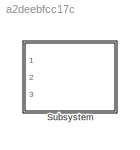
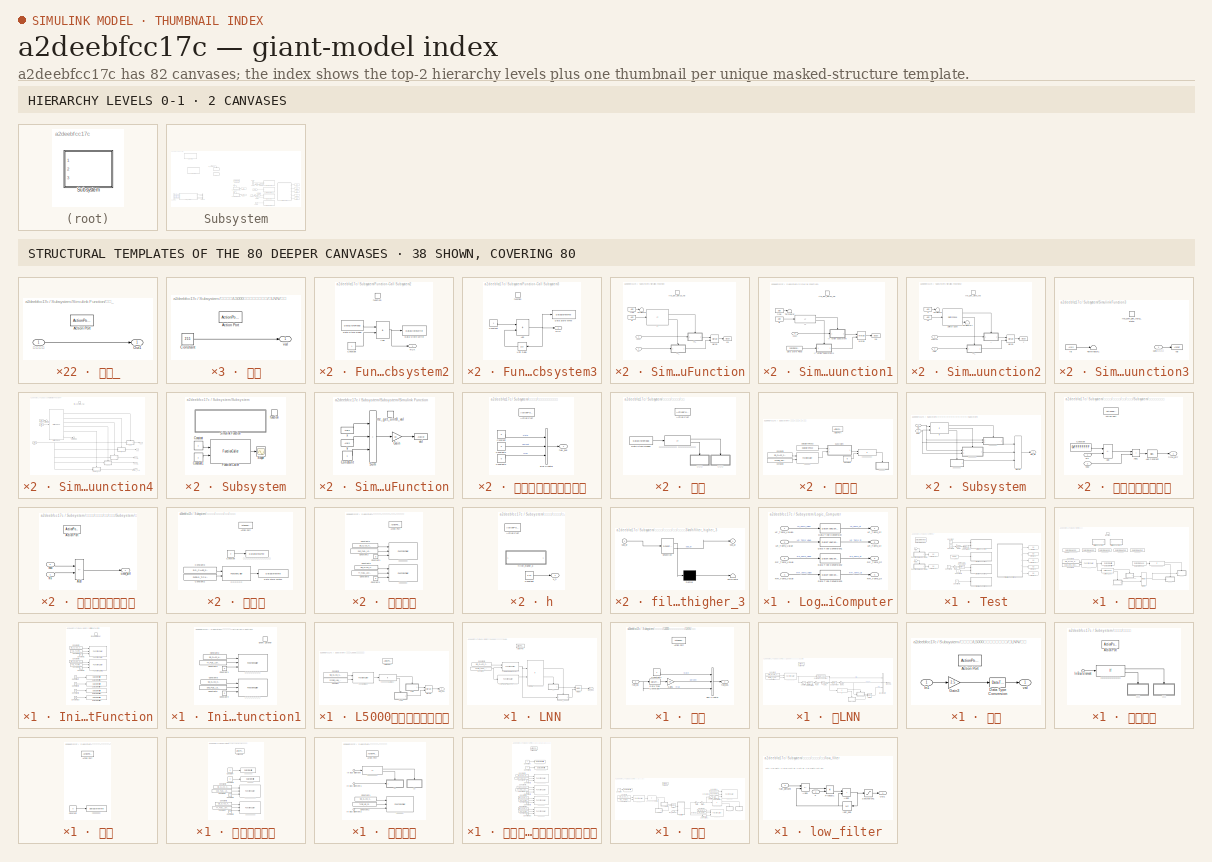
[diagram: thumbnail index - top-2 hierarchy levels (2 canvases) + 38 structural-template representatives of the remaining 80 canvases]
MODEL slx_a2deebfcc17c
KIND model
CONFIG AbsTol = auto
CONFIG EnableMultiTasking = off
CONFIG FixedStep = auto
CONFIG MaxStep = auto
CONFIG MinStep = auto
CONFIG RelTol = 1e-3
CONFIG SampleTimeConstraint = Unconstrained
CONFIG SolverName = VariableStepAuto
CONFIG StartTime = 0.0
CONFIG StopTime = 10.0
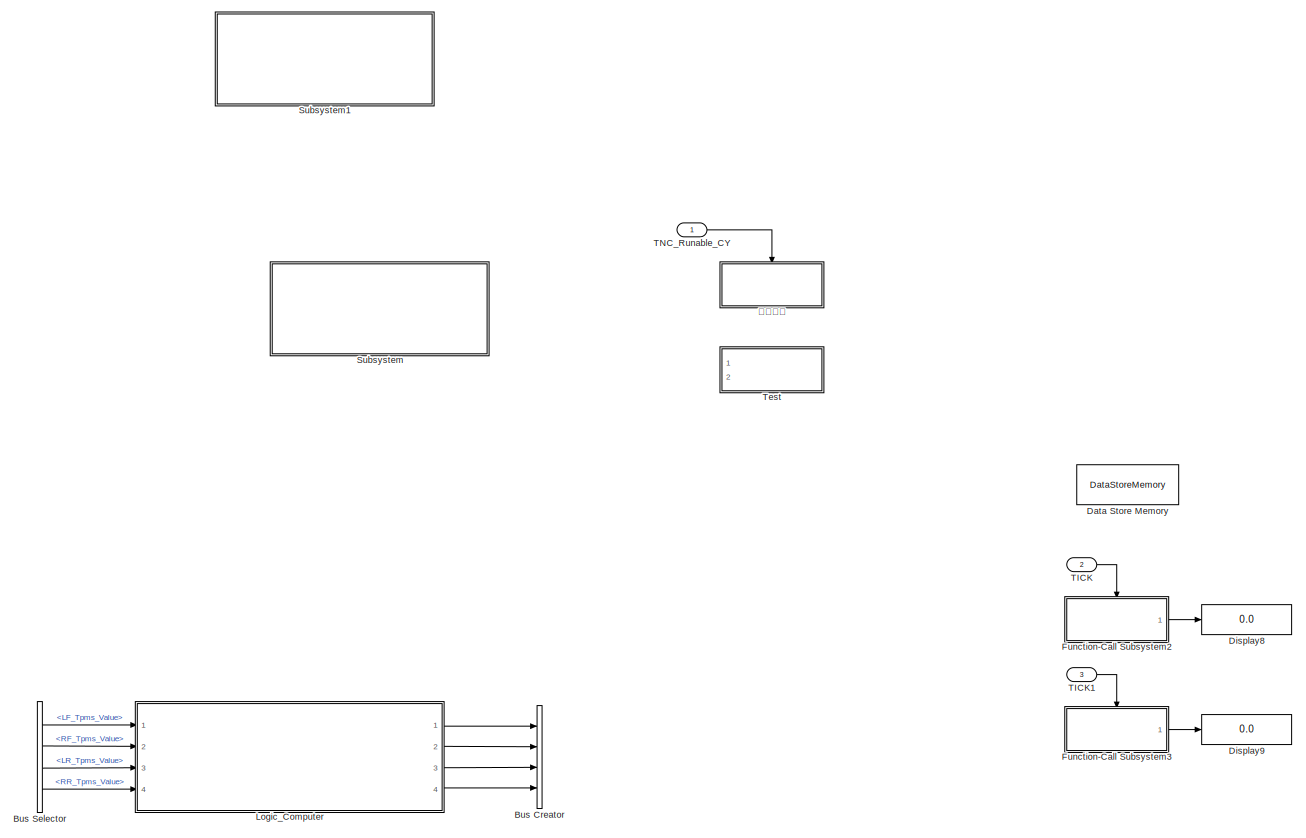
[diagram: Subsystem - part 1/2, left side, full height]
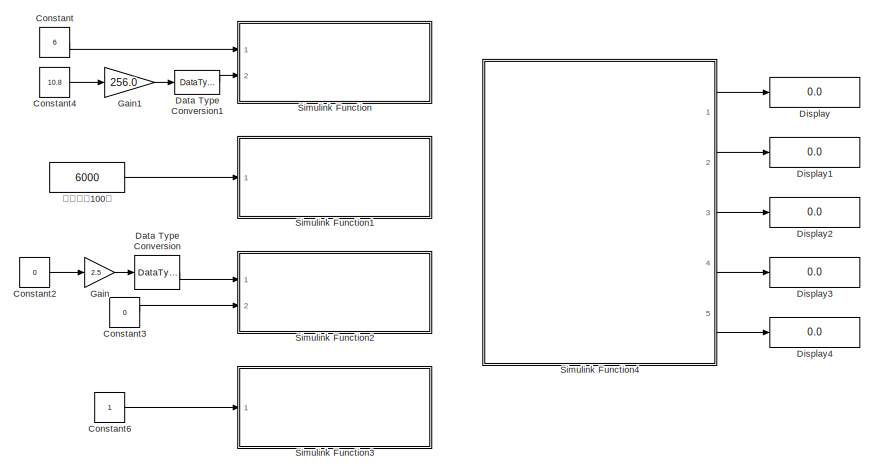
[diagram: Subsystem - part 2/2, bottom right region]
BLOCK [SubSystem] Subsystem
  Commented = on
  Ports = [3]
  RequestExecContextInheritance = off
BLOCK [BusCreator] Subsystem/Bus Creator
  Commented = on
  DisplayOption = bar
  InheritFromInputs = on
  Inputs = 4
  Ports = [4, 1]
BLOCK [BusSelector] Subsystem/Bus Selector
  Commented = on
  OutputSignals = LF_Tpms_Value,RF_Tpms_Value,LR_Tpms_Value,RR_Tpms_Value
  Ports = [1, 4]
BLOCK [Constant] Subsystem/Constant
  OutDataTypeStr = uint16
  Value = 6
BLOCK [Constant] Subsystem/Constant2
  OutDataTypeStr = single
  Value = 0
BLOCK [Constant] Subsystem/Constant3
  OutDataTypeStr = uint8
  Value = 0
BLOCK [Constant] Subsystem/Constant4
  OutDataTypeStr = single
  Value = 10.8
BLOCK [Constant] Subsystem/Constant6
  OutDataTypeStr = uint8
BLOCK [DataStoreMemory] Subsystem/Data Store Memory
  DataStoreName = SYS_TICK
  OutDataTypeStr = uint32
  ReadBeforeWriteMsg = warning
  ShowAdditionalParam = off
  WriteAfterReadMsg = warning
  WriteAfterWriteMsg = warning
BLOCK [DataTypeConversion] Subsystem/Data Type Conversion
  OutDataTypeStr = uint8
  RndMeth = Round
  SaturateOnIntegerOverflow = off
BLOCK [DataTypeConversion] Subsystem/Data Type Conversion1
  OutDataTypeStr = uint16
  RndMeth = Round
  SaturateOnIntegerOverflow = off
BLOCK [Display] Subsystem/Display
  Decimation = 1
  Format = decimal (Stored Integer)
  Ports = [1]
BLOCK [Display] Subsystem/Display1
  Decimation = 1
  Format = decimal (Stored Integer)
  Ports = [1]
BLOCK [Display] Subsystem/Display2
  Decimation = 1
  Format = decimal (Stored Integer)
  Ports = [1]
BLOCK [Display] Subsystem/Display3
  Decimation = 1
  Format = decimal (Stored Integer)
  Ports = [1]
BLOCK [Display] Subsystem/Display4
  Decimation = 1
  Format = decimal (Stored Integer)
  Ports = [1]
BLOCK [Display] Subsystem/Display8
  Decimation = 1
  Format = decimal (Stored Integer)
  Ports = [1]
BLOCK [Display] Subsystem/Display9
  Decimation = 1
  Format = decimal (Stored Integer)
  Ports = [1]
BLOCK [SubSystem] Subsystem/Function-Call Subsystem2
  Ports = [0, 1, 0, 1]
  RequestExecContextInheritance = off
  TreatAsAtomicUnit = on
BLOCK [Sum] Subsystem/Function-Call Subsystem2/Add
  IconShape = rectangular
  Ports = [2, 1]
BLOCK [Constant] Subsystem/Function-Call Subsystem2/Constant
  OutDataTypeStr = uint32
BLOCK [DataStoreRead] Subsystem/Function-Call Subsystem2/Data Store Read
  DataStoreName = SYS_TICK
  IndexOptions = Index vector (dialog)
  Indices = 1
  OutputSizes = 1
  Ports = [0, 1]
BLOCK [DataStoreWrite] Subsystem/Function-Call Subsystem2/Data Store Write
  DataStoreName = SYS_TICK
  IndexOptions = Index vector (dialog)
  Indices = 1
  OutputSizes = 1
  Ports = [1]
BLOCK [Outport] Subsystem/Function-Call Subsystem2/TICK
  OutDataTypeStr = uint32
BLOCK [TriggerPort] Subsystem/Function-Call Subsystem2/function
  Ports = []
  StatesWhenEnabling = held
  TriggerType = function-call
  VariantControl = (inherit)
BLOCK [SubSystem] Subsystem/Function-Call Subsystem3
  Ports = [0, 1, 0, 1]
  RequestExecContextInheritance = off
  TreatAsAtomicUnit = on
BLOCK [Sum] Subsystem/Function-Call Subsystem3/Add
  IconShape = rectangular
  Ports = [2, 1]
BLOCK [Constant] Subsystem/Function-Call Subsystem3/Constant
  OutDataTypeStr = uint32
BLOCK [DataStoreWrite] Subsystem/Function-Call Subsystem3/Data Store Write
  Commented = on
  DataStoreName = SYS_TICK
  IndexOptions = Index vector (dialog)
  Indices = 1
  OutputSizes = 1
  Ports = [1]
BLOCK [Outport] Subsystem/Function-Call Subsystem3/TICK
  OutDataTypeStr = uint32
BLOCK [UnitDelay] Subsystem/Function-Call Subsystem3/Unit Delay
  HasFrameUpgradeWarning = on
  SampleTime = -1
BLOCK [TriggerPort] Subsystem/Function-Call Subsystem3/function
  Ports = []
  StatesWhenEnabling = held
  TriggerType = function-call
  VariantControl = (inherit)
BLOCK [Gain] Subsystem/Gain
  Gain = 2.5
  OutDataTypeStr = uint8
  ParamDataTypeStr = single
  RndMeth = Round
BLOCK [Gain] Subsystem/Gain1
  Gain = 256.0
  OutDataTypeStr = single
  ParamDataTypeStr = single
BLOCK [SubSystem] Subsystem/Logic_Computer
  Commented = on
  Ports = [4, 4]
  RequestExecContextInheritance = off
BLOCK [DataTypeConversion] Subsystem/Logic_Computer/Data Type Conversion
  NameLocation = right
  OutDataTypeStr = boolean
  RndMeth = Floor
  SaturateOnIntegerOverflow = off
BLOCK [DataTypeConversion] Subsystem/Logic_Computer/Data Type Conversion1
  NameLocation = right
  OutDataTypeStr = boolean
  RndMeth = Floor
  SaturateOnIntegerOverflow = off
BLOCK [DataTypeConversion] Subsystem/Logic_Computer/Data Type Conversion2
  NameLocation = right
  OutDataTypeStr = boolean
  RndMeth = Floor
  SaturateOnIntegerOverflow = off
BLOCK [DataTypeConversion] Subsystem/Logic_Computer/Data Type Conversion3
  NameLocation = right
  OutDataTypeStr = boolean
  RndMeth = Floor
  SaturateOnIntegerOverflow = off
BLOCK [Outport] Subsystem/Logic_Computer/LF_Tpms_St
BLOCK [Inport] Subsystem/Logic_Computer/LF_Tpms_Value1
BLOCK [Outport] Subsystem/Logic_Computer/LR_Tpms_St
  Port = 2
BLOCK [Inport] Subsystem/Logic_Computer/LR_Tpms_Value
  Port = 2
BLOCK [Outport] Subsystem/Logic_Computer/RF_Tpms_St
  Port = 3
BLOCK [Inport] Subsystem/Logic_Computer/RF_Tpms_Value
  Port = 3
BLOCK [Outport] Subsystem/Logic_Computer/RR_Tpms_St
  Port = 4
BLOCK [Inport] Subsystem/Logic_Computer/RR_Tpms_Value
  Port = 4
BLOCK [SubSystem] Subsystem/Simulink Function
  Ports = [2, 0, 0, 1]
  RequestExecContextInheritance = off
  TreatAsAtomicUnit = on
BLOCK [If] Subsystem/Simulink Function/If
  ElseIfExpressions = u1==18
  IfExpression = u1==21
  Ports = [1, 2]
  ShowElse = off
BLOCK [Merge] Subsystem/Simulink Function/Merge
  Ports = [2, 1]
BLOCK [Terminator] Subsystem/Simulink Function/Terminator
BLOCK [ArgIn] Subsystem/Simulink Function/id
  ArgumentName = id
  DisableCoverage = on
  OutDataTypeStr = uint16
  Port = 2
BLOCK [TriggerPort] Subsystem/Simulink Function/rte_get_uint16_val
  FunctionName = rte_get_uint16_val
  FunctionVisibility = scoped
  IsSimulinkFunction = on
  Ports = []
  StatesWhenEnabling = held
  TriggerType = function-call
  VariantControl = (inherit)
BLOCK [ArgIn] Subsystem/Simulink Function/type
  ArgumentName = type
  DisableCoverage = on
  OutDataTypeStr = uint8
BLOCK [ArgOut] Subsystem/Simulink Function/val
  ArgumentName = val
  DisableCoverage = on
  OutDataTypeStr = uint16
BLOCK [SubSystem] Subsystem/Simulink Function/车型_
  Ports = [1, 1, 0, 0, 0, 0, 0, 1]
  RequestExecContextInheritance = off
  TreatAsAtomicUnit = on
BLOCK [ActionPort] Subsystem/Simulink Function/车型_/Action Port
BLOCK [Outport] Subsystem/Simulink Function/车型_/Out1
  OutDataTypeStr = uint16
BLOCK [Inport] Subsystem/Simulink Function/车型_/车型输入
  OutDataTypeStr = uint16
BLOCK [Inport] Subsystem/Simulink Function/车型输入
  OutDataTypeStr = uint16
BLOCK [Inport] Subsystem/Simulink Function/车速
  OutDataTypeStr = uint16
  Port = 2
BLOCK [SubSystem] Subsystem/Simulink Function/车速_
  Ports = [1, 1, 0, 0, 0, 0, 0, 1]
  RequestExecContextInheritance = off
  TreatAsAtomicUnit = on
BLOCK [ActionPort] Subsystem/Simulink Function/车速_/Action Port
BLOCK [Outport] Subsystem/Simulink Function/车速_/Out1
  OutDataTypeStr = uint16
BLOCK [Inport] Subsystem/Simulink Function/车速_/车型输入1
  OutDataTypeStr = uint16
BLOCK [SubSystem] Subsystem/Simulink Function1
  Ports = [1, 0, 0, 1]
  RequestExecContextInheritance = off
  TreatAsAtomicUnit = on
BLOCK [DataStoreRead] Subsystem/Simulink Function1/Data Store Read
  DataStoreName = SYS_TICK
  IndexOptions = Index vector (dialog)
  Indices = 1
  OutputSizes = 1
  Ports = [0, 1]
BLOCK [If] Subsystem/Simulink Function1/If
  ElseIfExpressions = u1==14
  IfExpression = u1==17
  Ports = [1, 2]
  ShowElse = off
BLOCK [SubSystem] Subsystem/Simulink Function1/If Action Subsystem
  Ports = [1, 1, 0, 0, 0, 0, 0, 1]
  RequestExecContextInheritance = off
  TreatAsAtomicUnit = on
BLOCK [ActionPort] Subsystem/Simulink Function1/If Action Subsystem/Action Port
BLOCK [Outport] Subsystem/Simulink Function1/If Action Subsystem/Out1
  OutDataTypeStr = uint32
BLOCK [Inport] Subsystem/Simulink Function1/If Action Subsystem/油箱电阻
  OutDataTypeStr = uint32
BLOCK [SubSystem] Subsystem/Simulink Function1/If Action Subsystem1
  Ports = [1, 1, 0, 0, 0, 0, 0, 1]
  RequestExecContextInheritance = off
  TreatAsAtomicUnit = on
BLOCK [ActionPort] Subsystem/Simulink Function1/If Action Subsystem1/Action Port
BLOCK [Outport] Subsystem/Simulink Function1/If Action Subsystem1/Out1
  OutDataTypeStr = uint32
BLOCK [Inport] Subsystem/Simulink Function1/If Action Subsystem1/时间
  OutDataTypeStr = uint32
BLOCK [Merge] Subsystem/Simulink Function1/Merge
  Ports = [2, 1]
BLOCK [Terminator] Subsystem/Simulink Function1/Terminator
BLOCK [ArgIn] Subsystem/Simulink Function1/id
  ArgumentName = id
  DisableCoverage = on
  OutDataTypeStr = uint16
  Port = 2
BLOCK [TriggerPort] Subsystem/Simulink Function1/rte_get_uint32_val
  FunctionName = rte_get_uint32_val
  FunctionVisibility = scoped
  IsSimulinkFunction = on
  Ports = []
  StatesWhenEnabling = held
  TriggerType = function-call
  VariantControl = (inherit)
BLOCK [ArgIn] Subsystem/Simulink Function1/type
  ArgumentName = type
  DisableCoverage = on
  OutDataTypeStr = uint8
BLOCK [ArgOut] Subsystem/Simulink Function1/val
  ArgumentName = val
  DisableCoverage = on
  OutDataTypeStr = uint32
BLOCK [Inport] Subsystem/Simulink Function1/油箱电阻
  OutDataTypeStr = uint32
BLOCK [SubSystem] Subsystem/Simulink Function2
  Ports = [2, 0, 0, 1]
  RequestExecContextInheritance = off
  TreatAsAtomicUnit = on
BLOCK [Inport] Subsystem/Simulink Function2/CAN燃油%
  OutDataTypeStr = uint8
BLOCK [Inport] Subsystem/Simulink Function2/LNN
  OutDataTypeStr = uint8
  Port = 2
BLOCK [Merge] Subsystem/Simulink Function2/Merge
  Ports = [2, 1]
BLOCK [SwitchCase] Subsystem/Simulink Function2/Switch Case
  CaseConditions = {15,13}
  Ports = [1, 3]
BLOCK [Terminator] Subsystem/Simulink Function2/Terminator
BLOCK [Terminator] Subsystem/Simulink Function2/Terminator1
BLOCK [SubSystem] Subsystem/Simulink Function2/_
  Ports = [1, 1, 0, 0, 0, 0, 0, 1]
  RequestExecContextInheritance = off
  TreatAsAtomicUnit = on
BLOCK [ActionPort] Subsystem/Simulink Function2/_/Action Port
BLOCK [Outport] Subsystem/Simulink Function2/_/Out1
  OutDataTypeStr = uint8
BLOCK [Inport] Subsystem/Simulink Function2/_/in
  OutDataTypeStr = uint8
BLOCK [TriggerPort] Subsystem/Simulink Function2/rte_get_uint8_val
  FunctionName = rte_get_uint8_val
  FunctionVisibility = scoped
  IsSimulinkFunction = on
  Ports = []
  StatesWhenEnabling = held
  TriggerType = function-call
  VariantControl = (inherit)
BLOCK [ArgIn] Subsystem/Simulink Function2/u
  ArgumentName = type
  DisableCoverage = on
  OutDataTypeStr = uint8
BLOCK [ArgIn] Subsystem/Simulink Function2/u1
  ArgumentName = id
  DisableCoverage = on
  OutDataTypeStr = uint16
  Port = 2
BLOCK [ArgOut] Subsystem/Simulink Function2/y
  ArgumentName = val
  DisableCoverage = on
  OutDataTypeStr = uint8
BLOCK [SubSystem] Subsystem/Simulink Function2/车速_
  Ports = [1, 1, 0, 0, 0, 0, 0, 1]
  RequestExecContextInheritance = off
  TreatAsAtomicUnit = on
BLOCK [ActionPort] Subsystem/Simulink Function2/车速_/Action Port
BLOCK [Outport] Subsystem/Simulink Function2/车速_/Out1
  OutDataTypeStr = uint8
BLOCK [Inport] Subsystem/Simulink Function2/车速_/in
  OutDataTypeStr = uint8
BLOCK [SubSystem] Subsystem/Simulink Function3
  Ports = [1, 0, 0, 1]
  RequestExecContextInheritance = off
  TreatAsAtomicUnit = on
BLOCK [Terminator] Subsystem/Simulink Function3/Terminator1
BLOCK [Inport] Subsystem/Simulink Function3/can报文状态
  OutDataTypeStr = uint8
BLOCK [ArgIn] Subsystem/Simulink Function3/id
  ArgumentName = id
  DisableCoverage = on
  OutDataTypeStr = uint16
BLOCK [TriggerPort] Subsystem/Simulink Function3/rte_com_get_rxsig_state
  FunctionName = rte_com_get_rxsig_state
  FunctionVisibility = scoped
  IsSimulinkFunction = on
  Ports = []
  StatesWhenEnabling = held
  TriggerType = function-call
  VariantControl = (inherit)
BLOCK [ArgOut] Subsystem/Simulink Function3/val
  ArgumentName = val
  DisableCoverage = on
  OutDataTypeStr = uint8
BLOCK [SubSystem] Subsystem/Simulink Function4
  Ports = [0, 5, 0, 1]
  RequestExecContextInheritance = off
  TreatAsAtomicUnit = on
BLOCK [SubSystem] Subsystem/Simulink Function4/CAN发_油量
  Ports = [1, 1, 0, 0, 0, 0, 0, 1]
  RequestExecContextInheritance = off
  TreatAsAtomicUnit = on
BLOCK [Outport] Subsystem/Simulink Function4/CAN发_油量%
  OutDataTypeStr = uint8
  Port = 5
BLOCK [ActionPort] Subsystem/Simulink Function4/CAN发_油量/Action Port
BLOCK [Outport] Subsystem/Simulink Function4/CAN发_油量/Output1
  OutDataTypeStr = uint8
BLOCK [Inport] Subsystem/Simulink Function4/CAN发_油量/车型输入
  OutDataTypeStr = uint8
BLOCK [SwitchCase] Subsystem/Simulink Function4/Switch Case
  CaseConditions = {23,22,19,20,16}
  Ports = [1, 6]
BLOCK [Terminator] Subsystem/Simulink Function4/Terminator
BLOCK [Terminator] Subsystem/Simulink Function4/Terminator1
BLOCK [ArgIn] Subsystem/Simulink Function4/id
  ArgumentName = id
  DisableCoverage = on
  OutDataTypeStr = uint16
  Port = 2
BLOCK [TriggerPort] Subsystem/Simulink Function4/rte_set_uint8_val
  FunctionName = rte_set_uint8_val
  FunctionVisibility = scoped
  IsSimulinkFunction = on
  Ports = []
  StatesWhenEnabling = held
  TriggerType = function-call
  VariantControl = (inherit)
BLOCK [SubSystem] Subsystem/Simulink Function4/snd
  Ports = [1, 1, 0, 0, 0, 0, 0, 1]
  RequestExecContextInheritance = off
  TreatAsAtomicUnit = on
BLOCK [ActionPort] Subsystem/Simulink Function4/snd/Action Port
BLOCK [Outport] Subsystem/Simulink Function4/snd/Output
  OutDataTypeStr = uint8
BLOCK [Inport] Subsystem/Simulink Function4/snd/车型输入
  OutDataTypeStr = uint8
BLOCK [SubSystem] Subsystem/Simulink Function4/tt
  Ports = [1, 1, 0, 0, 0, 0, 0, 1]
  RequestExecContextInheritance = off
  TreatAsAtomicUnit = on
BLOCK [ActionPort] Subsystem/Simulink Function4/tt/Action Port
BLOCK [Outport] Subsystem/Simulink Function4/tt/Output1
  OutDataTypeStr = uint8
BLOCK [Inport] Subsystem/Simulink Function4/tt/车型输入
  OutDataTypeStr = uint8
BLOCK [ArgIn] Subsystem/Simulink Function4/type
  ArgumentName = type
  DisableCoverage = on
  OutDataTypeStr = uint8
BLOCK [ArgIn] Subsystem/Simulink Function4/val
  ArgumentName = val
  DisableCoverage = on
  OutDataTypeStr = uint8
  Port = 3
BLOCK [Outport] Subsystem/Simulink Function4/报警灯
  OutDataTypeStr = uint8
  Port = 2
BLOCK [SubSystem] Subsystem/Simulink Function4/油量显示
  Ports = [1, 1, 0, 0, 0, 0, 0, 1]
  RequestExecContextInheritance = off
  TreatAsAtomicUnit = on
BLOCK [Outport] Subsystem/Simulink Function4/油量显示%
  OutDataTypeStr = uint8
  Port = 3
BLOCK [ActionPort] Subsystem/Simulink Function4/油量显示/Action Port
BLOCK [Outport] Subsystem/Simulink Function4/油量显示/Output1
  OutDataTypeStr = uint8
BLOCK [Inport] Subsystem/Simulink Function4/油量显示/车型输入
  OutDataTypeStr = uint8
BLOCK [SubSystem] Subsystem/Simulink Function4/油量真实
  Ports = [1, 1, 0, 0, 0, 0, 0, 1]
  RequestExecContextInheritance = off
  TreatAsAtomicUnit = on
BLOCK [Outport] Subsystem/Simulink Function4/油量真实%
  OutDataTypeStr = uint8
  Port = 4
BLOCK [ActionPort] Subsystem/Simulink Function4/油量真实/Action Port
BLOCK [Outport] Subsystem/Simulink Function4/油量真实/Output1
  OutDataTypeStr = uint8
BLOCK [Inport] Subsystem/Simulink Function4/油量真实/车型输入
  OutDataTypeStr = uint8
BLOCK [Outport] Subsystem/Simulink Function4/蜂鸣器
  OutDataTypeStr = uint8
BLOCK [SubSystem] Subsystem/Subsystem
  Commented = on
  Ports = [0, 0, 0, 1]
  RequestExecContextInheritance = off
BLOCK [Constant] Subsystem/Subsystem/Constant
BLOCK [Constant] Subsystem/Subsystem/Constant1
BLOCK [FunctionCaller] Subsystem/Subsystem/Function Caller
  FunctionPrototype = val = rte_get_uint8_val(x,y)
  InputArgumentSpecifications = <Enter example>
  OutputArgumentSpecifications = <Enter example>
  Ports = [2, 1]
BLOCK [Scope] Subsystem/Subsystem/Scope
  Floating = off
  NumInputPorts = 1
  Ports = [1]
  ScopeSpecificationString = Simulink.scopes.TimeScopeBlockCfg('CurrentConfiguration', extmgr.ConfigurationSet(extmgr.Configuration('Core','General UI',true),extmgr.Configuration('Core','Source UI',true),extmgr.Configuration('Sources','WiredSimulink',true),extmgr.Configuration('Visuals','Time Domain',true,'SerializedDisplays',{struct('MinYLimReal','20.00000','MaxYLimReal','40.00000','YLabelReal','','MinYLimMag','20.00000','Ma...<+1341ch>
BLOCK [SubSystem] Subsystem/Subsystem/Simulink Function
  Ports = [0, 0, 0, 1]
  RequestExecContextInheritance = off
  TreatAsAtomicUnit = on
BLOCK [Constant] Subsystem/Subsystem/Simulink Function/Constant
BLOCK [Gain] Subsystem/Subsystem/Simulink Function/Gain
  Gain = 10
BLOCK [Sum] Subsystem/Subsystem/Simulink Function/Sum
  IconShape = rectangular
  Inputs = |+++
  Ports = [3, 1]
BLOCK [TriggerPort] Subsystem/Subsystem/Simulink Function/rte_get_uint8_val
  FunctionName = rte_get_uint8_val
  FunctionVisibility = scoped
  IsSimulinkFunction = on
  Ports = []
  StatesWhenEnabling = held
  TriggerType = function-call
  VariantControl = (inherit)
BLOCK [ArgOut] Subsystem/Subsystem/Simulink Function/val
  ArgumentName = val
  DisableCoverage = on
BLOCK [ArgIn] Subsystem/Subsystem/Simulink Function/x
  ArgumentName = x
  DisableCoverage = on
BLOCK [ArgIn] Subsystem/Subsystem/Simulink Function/y
  ArgumentName = y
  Port = 2
BLOCK [TriggerPort] Subsystem/Subsystem/function
  Ports = []
  StatesWhenEnabling = held
  TriggerType = function-call
  VariantControl = (inherit)
BLOCK [SubSystem] Subsystem/Subsystem1
  Commented = on
  Ports = [0, 0, 0, 1]
  RequestExecContextInheritance = off
BLOCK [Constant] Subsystem/Subsystem1/Constant
BLOCK [Constant] Subsystem/Subsystem1/Constant1
BLOCK [FunctionCaller] Subsystem/Subsystem1/Function Caller
  FunctionPrototype = val = rte_get_uint8_val(x,y)
  InputArgumentSpecifications = <Enter example>
  OutputArgumentSpecifications = <Enter example>
  Ports = [2, 1]
BLOCK [Scope] Subsystem/Subsystem1/Scope
  Floating = off
  NumInputPorts = 1
  Ports = [1]
  ScopeSpecificationString = Simulink.scopes.TimeScopeBlockCfg('CurrentConfiguration', extmgr.ConfigurationSet(extmgr.Configuration('Core','General UI',true),extmgr.Configuration('Core','Source UI',true),extmgr.Configuration('Sources','WiredSimulink',true),extmgr.Configuration('Visuals','Time Domain',true,'SerializedDisplays',{struct('MinYLimReal','20.00000','MaxYLimReal','40.00000','YLabelReal','','MinYLimMag','20.00000','Ma...<+1341ch>
BLOCK [SubSystem] Subsystem/Subsystem1/Simulink Function
  Ports = [0, 0, 0, 1]
  RequestExecContextInheritance = off
  TreatAsAtomicUnit = on
BLOCK [Constant] Subsystem/Subsystem1/Simulink Function/Constant
BLOCK [Gain] Subsystem/Subsystem1/Simulink Function/Gain
  Gain = 10
BLOCK [Sum] Subsystem/Subsystem1/Simulink Function/Sum
  IconShape = rectangular
  Inputs = |+++
  Ports = [3, 1]
BLOCK [TriggerPort] Subsystem/Subsystem1/Simulink Function/rte_get_uint8_val
  FunctionName = rte_get_uint8_val
  FunctionVisibility = scoped
  IsSimulinkFunction = on
  Ports = []
  StatesWhenEnabling = held
  TriggerType = function-call
  VariantControl = (inherit)
BLOCK [ArgOut] Subsystem/Subsystem1/Simulink Function/val
  ArgumentName = val
  DisableCoverage = on
BLOCK [ArgIn] Subsystem/Subsystem1/Simulink Function/x
  ArgumentName = x
  DisableCoverage = on
BLOCK [ArgIn] Subsystem/Subsystem1/Simulink Function/y
  ArgumentName = y
  Port = 2
BLOCK [TriggerPort] Subsystem/Subsystem1/function
  Ports = []
  StatesWhenEnabling = held
  TriggerType = function-call
  VariantControl = (inherit)
BLOCK [Inport] Subsystem/TICK
  OutputFunctionCall = on
  Port = 2
  Priority = 1
  SampleTime = 0.001
BLOCK [Inport] Subsystem/TICK1
  OutputFunctionCall = on
  Port = 3
  Priority = 1
  SampleTime = 0.001
BLOCK [Inport] Subsystem/TNC_Runable_CY
  OutputFunctionCall = on
  SampleTime = 1
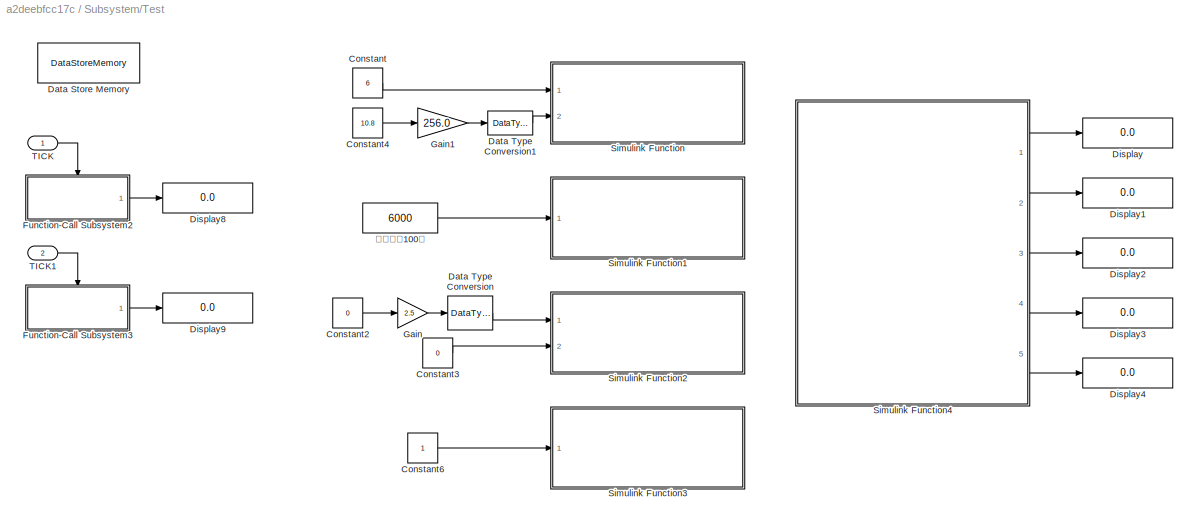
BLOCK [SubSystem] Subsystem/Test
  Commented = on
  Ports = [2]
  RequestExecContextInheritance = off
BLOCK [Constant] Subsystem/Test/Constant
  OutDataTypeStr = uint16
  Value = 6
BLOCK [Constant] Subsystem/Test/Constant2
  OutDataTypeStr = single
  Value = 0
BLOCK [Constant] Subsystem/Test/Constant3
  OutDataTypeStr = uint8
  Value = 0
BLOCK [Constant] Subsystem/Test/Constant4
  OutDataTypeStr = single
  Value = 10.8
BLOCK [Constant] Subsystem/Test/Constant6
  OutDataTypeStr = uint8
BLOCK [DataStoreMemory] Subsystem/Test/Data Store Memory
  DataStoreName = SYS_TICK
  OutDataTypeStr = uint32
  ReadBeforeWriteMsg = warning
  ShowAdditionalParam = off
  WriteAfterReadMsg = warning
  WriteAfterWriteMsg = warning
BLOCK [DataTypeConversion] Subsystem/Test/Data Type Conversion
  OutDataTypeStr = uint8
  RndMeth = Round
  SaturateOnIntegerOverflow = off
BLOCK [DataTypeConversion] Subsystem/Test/Data Type Conversion1
  OutDataTypeStr = uint16
  RndMeth = Round
  SaturateOnIntegerOverflow = off
BLOCK [Display] Subsystem/Test/Display
  Decimation = 1
  Format = decimal (Stored Integer)
  Ports = [1]
BLOCK [Display] Subsystem/Test/Display1
  Decimation = 1
  Format = decimal (Stored Integer)
  Ports = [1]
BLOCK [Display] Subsystem/Test/Display2
  Decimation = 1
  Format = decimal (Stored Integer)
  Ports = [1]
BLOCK [Display] Subsystem/Test/Display3
  Decimation = 1
  Format = decimal (Stored Integer)
  Ports = [1]
BLOCK [Display] Subsystem/Test/Display4
  Decimation = 1
  Format = decimal (Stored Integer)
  Ports = [1]
BLOCK [Display] Subsystem/Test/Display8
  Decimation = 1
  Format = decimal (Stored Integer)
  Ports = [1]
BLOCK [Display] Subsystem/Test/Display9
  Decimation = 1
  Format = decimal (Stored Integer)
  Ports = [1]
BLOCK [SubSystem] Subsystem/Test/Function-Call Subsystem2
  Ports = [0, 1, 0, 1]
  RequestExecContextInheritance = off
  TreatAsAtomicUnit = on
BLOCK [Sum] Subsystem/Test/Function-Call Subsystem2/Add
  IconShape = rectangular
  Ports = [2, 1]
BLOCK [Constant] Subsystem/Test/Function-Call Subsystem2/Constant
  OutDataTypeStr = uint32
BLOCK [DataStoreRead] Subsystem/Test/Function-Call Subsystem2/Data Store Read
  DataStoreName = SYS_TICK
  IndexOptions = Index vector (dialog)
  Indices = 1
  OutputSizes = 1
  Ports = [0, 1]
BLOCK [DataStoreWrite] Subsystem/Test/Function-Call Subsystem2/Data Store Write
  DataStoreName = SYS_TICK
  IndexOptions = Index vector (dialog)
  Indices = 1
  OutputSizes = 1
  Ports = [1]
BLOCK [Outport] Subsystem/Test/Function-Call Subsystem2/TICK
  OutDataTypeStr = uint32
BLOCK [TriggerPort] Subsystem/Test/Function-Call Subsystem2/function
  Ports = []
  StatesWhenEnabling = held
  TriggerType = function-call
  VariantControl = (inherit)
BLOCK [SubSystem] Subsystem/Test/Function-Call Subsystem3
  Ports = [0, 1, 0, 1]
  RequestExecContextInheritance = off
  TreatAsAtomicUnit = on
BLOCK [Sum] Subsystem/Test/Function-Call Subsystem3/Add
  IconShape = rectangular
  Ports = [2, 1]
BLOCK [Constant] Subsystem/Test/Function-Call Subsystem3/Constant
  OutDataTypeStr = uint32
BLOCK [DataStoreWrite] Subsystem/Test/Function-Call Subsystem3/Data Store Write
  Commented = on
  DataStoreName = SYS_TICK
  IndexOptions = Index vector (dialog)
  Indices = 1
  OutputSizes = 1
  Ports = [1]
BLOCK [Outport] Subsystem/Test/Function-Call Subsystem3/TICK
  OutDataTypeStr = uint32
BLOCK [UnitDelay] Subsystem/Test/Function-Call Subsystem3/Unit Delay
  HasFrameUpgradeWarning = on
  SampleTime = -1
BLOCK [TriggerPort] Subsystem/Test/Function-Call Subsystem3/function
  Ports = []
  StatesWhenEnabling = held
  TriggerType = function-call
  VariantControl = (inherit)
BLOCK [Gain] Subsystem/Test/Gain
  Gain = 2.5
  OutDataTypeStr = uint8
  ParamDataTypeStr = single
  RndMeth = Round
BLOCK [Gain] Subsystem/Test/Gain1
  Gain = 256.0
  OutDataTypeStr = single
  ParamDataTypeStr = single
BLOCK [SubSystem] Subsystem/Test/Simulink Function
  Ports = [2, 0, 0, 1]
  RequestExecContextInheritance = off
  TreatAsAtomicUnit = on
BLOCK [If] Subsystem/Test/Simulink Function/If
  ElseIfExpressions = u1==18
  IfExpression = u1==21
  Ports = [1, 2]
  ShowElse = off
BLOCK [Merge] Subsystem/Test/Simulink Function/Merge
  Ports = [2, 1]
BLOCK [Terminator] Subsystem/Test/Simulink Function/Terminator
BLOCK [ArgIn] Subsystem/Test/Simulink Function/id
  ArgumentName = id
  DisableCoverage = on
  OutDataTypeStr = uint16
  Port = 2
BLOCK [TriggerPort] Subsystem/Test/Simulink Function/rte_get_uint16_val
  FunctionName = rte_get_uint16_val
  FunctionVisibility = scoped
  IsSimulinkFunction = on
  Ports = []
  StatesWhenEnabling = held
  TriggerType = function-call
  VariantControl = (inherit)
BLOCK [ArgIn] Subsystem/Test/Simulink Function/type
  ArgumentName = type
  DisableCoverage = on
  OutDataTypeStr = uint8
BLOCK [ArgOut] Subsystem/Test/Simulink Function/val
  ArgumentName = val
  DisableCoverage = on
  OutDataTypeStr = uint16
BLOCK [SubSystem] Subsystem/Test/Simulink Function/车型_
  Ports = [1, 1, 0, 0, 0, 0, 0, 1]
  RequestExecContextInheritance = off
  TreatAsAtomicUnit = on
BLOCK [ActionPort] Subsystem/Test/Simulink Function/车型_/Action Port
BLOCK [Outport] Subsystem/Test/Simulink Function/车型_/Out1
  OutDataTypeStr = uint16
BLOCK [Inport] Subsystem/Test/Simulink Function/车型_/车型输入
  OutDataTypeStr = uint16
BLOCK [Inport] Subsystem/Test/Simulink Function/车型输入
  OutDataTypeStr = uint16
BLOCK [Inport] Subsystem/Test/Simulink Function/车速
  OutDataTypeStr = uint16
  Port = 2
BLOCK [SubSystem] Subsystem/Test/Simulink Function/车速_
  Ports = [1, 1, 0, 0, 0, 0, 0, 1]
  RequestExecContextInheritance = off
  TreatAsAtomicUnit = on
BLOCK [ActionPort] Subsystem/Test/Simulink Function/车速_/Action Port
BLOCK [Outport] Subsystem/Test/Simulink Function/车速_/Out1
  OutDataTypeStr = uint16
BLOCK [Inport] Subsystem/Test/Simulink Function/车速_/车型输入1
  OutDataTypeStr = uint16
BLOCK [SubSystem] Subsystem/Test/Simulink Function1
  Ports = [1, 0, 0, 1]
  RequestExecContextInheritance = off
  TreatAsAtomicUnit = on
BLOCK [DataStoreRead] Subsystem/Test/Simulink Function1/Data Store Read
  DataStoreName = SYS_TICK
  IndexOptions = Index vector (dialog)
  Indices = 1
  OutputSizes = 1
  Ports = [0, 1]
BLOCK [If] Subsystem/Test/Simulink Function1/If
  ElseIfExpressions = u1==14
  IfExpression = u1==17
  Ports = [1, 2]
  ShowElse = off
BLOCK [SubSystem] Subsystem/Test/Simulink Function1/If Action Subsystem
  Ports = [1, 1, 0, 0, 0, 0, 0, 1]
  RequestExecContextInheritance = off
  TreatAsAtomicUnit = on
BLOCK [ActionPort] Subsystem/Test/Simulink Function1/If Action Subsystem/Action Port
BLOCK [Outport] Subsystem/Test/Simulink Function1/If Action Subsystem/Out1
  OutDataTypeStr = uint32
BLOCK [Inport] Subsystem/Test/Simulink Function1/If Action Subsystem/油箱电阻
  OutDataTypeStr = uint32
BLOCK [SubSystem] Subsystem/Test/Simulink Function1/If Action Subsystem1
  Ports = [1, 1, 0, 0, 0, 0, 0, 1]
  RequestExecContextInheritance = off
  TreatAsAtomicUnit = on
BLOCK [ActionPort] Subsystem/Test/Simulink Function1/If Action Subsystem1/Action Port
BLOCK [Outport] Subsystem/Test/Simulink Function1/If Action Subsystem1/Out1
  OutDataTypeStr = uint32
BLOCK [Inport] Subsystem/Test/Simulink Function1/If Action Subsystem1/时间
  OutDataTypeStr = uint32
BLOCK [Merge] Subsystem/Test/Simulink Function1/Merge
  Ports = [2, 1]
BLOCK [Terminator] Subsystem/Test/Simulink Function1/Terminator
BLOCK [ArgIn] Subsystem/Test/Simulink Function1/id
  ArgumentName = id
  DisableCoverage = on
  OutDataTypeStr = uint16
  Port = 2
BLOCK [TriggerPort] Subsystem/Test/Simulink Function1/rte_get_uint32_val
  FunctionName = rte_get_uint32_val
  FunctionVisibility = scoped
  IsSimulinkFunction = on
  Ports = []
  StatesWhenEnabling = held
  TriggerType = function-call
  VariantControl = (inherit)
BLOCK [ArgIn] Subsystem/Test/Simulink Function1/type
  ArgumentName = type
  DisableCoverage = on
  OutDataTypeStr = uint8
BLOCK [ArgOut] Subsystem/Test/Simulink Function1/val
  ArgumentName = val
  DisableCoverage = on
  OutDataTypeStr = uint32
BLOCK [Inport] Subsystem/Test/Simulink Function1/油箱电阻
  OutDataTypeStr = uint32
BLOCK [SubSystem] Subsystem/Test/Simulink Function2
  Ports = [2, 0, 0, 1]
  RequestExecContextInheritance = off
  TreatAsAtomicUnit = on
BLOCK [Inport] Subsystem/Test/Simulink Function2/CAN燃油%
  OutDataTypeStr = uint8
BLOCK [Inport] Subsystem/Test/Simulink Function2/LNN
  OutDataTypeStr = uint8
  Port = 2
BLOCK [Merge] Subsystem/Test/Simulink Function2/Merge
  Ports = [2, 1]
BLOCK [SwitchCase] Subsystem/Test/Simulink Function2/Switch Case
  CaseConditions = {15,13}
  Ports = [1, 3]
BLOCK [Terminator] Subsystem/Test/Simulink Function2/Terminator
BLOCK [Terminator] Subsystem/Test/Simulink Function2/Terminator1
BLOCK [SubSystem] Subsystem/Test/Simulink Function2/_
  Ports = [1, 1, 0, 0, 0, 0, 0, 1]
  RequestExecContextInheritance = off
  TreatAsAtomicUnit = on
BLOCK [ActionPort] Subsystem/Test/Simulink Function2/_/Action Port
BLOCK [Outport] Subsystem/Test/Simulink Function2/_/Out1
  OutDataTypeStr = uint8
BLOCK [Inport] Subsystem/Test/Simulink Function2/_/in
  OutDataTypeStr = uint8
BLOCK [TriggerPort] Subsystem/Test/Simulink Function2/rte_get_uint8_val
  FunctionName = rte_get_uint8_val
  FunctionVisibility = scoped
  IsSimulinkFunction = on
  Ports = []
  StatesWhenEnabling = held
  TriggerType = function-call
  VariantControl = (inherit)
BLOCK [ArgIn] Subsystem/Test/Simulink Function2/u
  ArgumentName = type
  DisableCoverage = on
  OutDataTypeStr = uint8
BLOCK [ArgIn] Subsystem/Test/Simulink Function2/u1
  ArgumentName = id
  DisableCoverage = on
  OutDataTypeStr = uint16
  Port = 2
BLOCK [ArgOut] Subsystem/Test/Simulink Function2/y
  ArgumentName = val
  DisableCoverage = on
  OutDataTypeStr = uint8
BLOCK [SubSystem] Subsystem/Test/Simulink Function2/车速_
  Ports = [1, 1, 0, 0, 0, 0, 0, 1]
  RequestExecContextInheritance = off
  TreatAsAtomicUnit = on
BLOCK [ActionPort] Subsystem/Test/Simulink Function2/车速_/Action Port
BLOCK [Outport] Subsystem/Test/Simulink Function2/车速_/Out1
  OutDataTypeStr = uint8
BLOCK [Inport] Subsystem/Test/Simulink Function2/车速_/in
  OutDataTypeStr = uint8
BLOCK [SubSystem] Subsystem/Test/Simulink Function3
  Ports = [1, 0, 0, 1]
  RequestExecContextInheritance = off
  TreatAsAtomicUnit = on
BLOCK [Terminator] Subsystem/Test/Simulink Function3/Terminator1
BLOCK [Inport] Subsystem/Test/Simulink Function3/can报文状态
  OutDataTypeStr = uint8
BLOCK [ArgIn] Subsystem/Test/Simulink Function3/id
  ArgumentName = id
  DisableCoverage = on
  OutDataTypeStr = uint16
BLOCK [TriggerPort] Subsystem/Test/Simulink Function3/rte_com_get_rxsig_state
  FunctionName = rte_com_get_rxsig_state
  FunctionVisibility = scoped
  IsSimulinkFunction = on
  Ports = []
  StatesWhenEnabling = held
  TriggerType = function-call
  VariantControl = (inherit)
BLOCK [ArgOut] Subsystem/Test/Simulink Function3/val
  ArgumentName = val
  DisableCoverage = on
  OutDataTypeStr = uint8
BLOCK [SubSystem] Subsystem/Test/Simulink Function4
  Ports = [0, 5, 0, 1]
  RequestExecContextInheritance = off
  TreatAsAtomicUnit = on
BLOCK [SubSystem] Subsystem/Test/Simulink Function4/CAN发_油量
  Ports = [1, 1, 0, 0, 0, 0, 0, 1]
  RequestExecContextInheritance = off
  TreatAsAtomicUnit = on
BLOCK [Outport] Subsystem/Test/Simulink Function4/CAN发_油量%
  OutDataTypeStr = uint8
  Port = 5
BLOCK [ActionPort] Subsystem/Test/Simulink Function4/CAN发_油量/Action Port
BLOCK [Outport] Subsystem/Test/Simulink Function4/CAN发_油量/Output1
  OutDataTypeStr = uint8
BLOCK [Inport] Subsystem/Test/Simulink Function4/CAN发_油量/车型输入
  OutDataTypeStr = uint8
BLOCK [SwitchCase] Subsystem/Test/Simulink Function4/Switch Case
  CaseConditions = {23,22,19,20,16}
  Ports = [1, 6]
BLOCK [Terminator] Subsystem/Test/Simulink Function4/Terminator
BLOCK [Terminator] Subsystem/Test/Simulink Function4/Terminator1
BLOCK [ArgIn] Subsystem/Test/Simulink Function4/id
  ArgumentName = id
  DisableCoverage = on
  OutDataTypeStr = uint16
  Port = 2
BLOCK [TriggerPort] Subsystem/Test/Simulink Function4/rte_set_uint8_val
  FunctionName = rte_set_uint8_val
  FunctionVisibility = scoped
  IsSimulinkFunction = on
  Ports = []
  StatesWhenEnabling = held
  TriggerType = function-call
  VariantControl = (inherit)
BLOCK [SubSystem] Subsystem/Test/Simulink Function4/snd
  Ports = [1, 1, 0, 0, 0, 0, 0, 1]
  RequestExecContextInheritance = off
  TreatAsAtomicUnit = on
BLOCK [ActionPort] Subsystem/Test/Simulink Function4/snd/Action Port
BLOCK [Outport] Subsystem/Test/Simulink Function4/snd/Output
  OutDataTypeStr = uint8
BLOCK [Inport] Subsystem/Test/Simulink Function4/snd/车型输入
  OutDataTypeStr = uint8
BLOCK [SubSystem] Subsystem/Test/Simulink Function4/tt
  Ports = [1, 1, 0, 0, 0, 0, 0, 1]
  RequestExecContextInheritance = off
  TreatAsAtomicUnit = on
BLOCK [ActionPort] Subsystem/Test/Simulink Function4/tt/Action Port
BLOCK [Outport] Subsystem/Test/Simulink Function4/tt/Output1
  OutDataTypeStr = uint8
BLOCK [Inport] Subsystem/Test/Simulink Function4/tt/车型输入
  OutDataTypeStr = uint8
BLOCK [ArgIn] Subsystem/Test/Simulink Function4/type
  ArgumentName = type
  DisableCoverage = on
  OutDataTypeStr = uint8
BLOCK [ArgIn] Subsystem/Test/Simulink Function4/val
  ArgumentName = val
  DisableCoverage = on
  OutDataTypeStr = uint8
  Port = 3
BLOCK [Outport] Subsystem/Test/Simulink Function4/报警灯
  OutDataTypeStr = uint8
  Port = 2
BLOCK [SubSystem] Subsystem/Test/Simulink Function4/油量显示
  Ports = [1, 1, 0, 0, 0, 0, 0, 1]
  RequestExecContextInheritance = off
  TreatAsAtomicUnit = on
BLOCK [Outport] Subsystem/Test/Simulink Function4/油量显示%
  OutDataTypeStr = uint8
  Port = 3
BLOCK [ActionPort] Subsystem/Test/Simulink Function4/油量显示/Action Port
BLOCK [Outport] Subsystem/Test/Simulink Function4/油量显示/Output1
  OutDataTypeStr = uint8
BLOCK [Inport] Subsystem/Test/Simulink Function4/油量显示/车型输入
  OutDataTypeStr = uint8
BLOCK [SubSystem] Subsystem/Test/Simulink Function4/油量真实
  Ports = [1, 1, 0, 0, 0, 0, 0, 1]
  RequestExecContextInheritance = off
  TreatAsAtomicUnit = on
BLOCK [Outport] Subsystem/Test/Simulink Function4/油量真实%
  OutDataTypeStr = uint8
  Port = 4
BLOCK [ActionPort] Subsystem/Test/Simulink Function4/油量真实/Action Port
BLOCK [Outport] Subsystem/Test/Simulink Function4/油量真实/Output1
  OutDataTypeStr = uint8
BLOCK [Inport] Subsystem/Test/Simulink Function4/油量真实/车型输入
  OutDataTypeStr = uint8
BLOCK [Outport] Subsystem/Test/Simulink Function4/蜂鸣器
  OutDataTypeStr = uint8
BLOCK [Inport] Subsystem/Test/TICK
  OutputFunctionCall = on
  Priority = 1
  SampleTime = 0.001
BLOCK [Inport] Subsystem/Test/TICK1
  OutputFunctionCall = on
  Port = 2
  Priority = 1
  SampleTime = 0.001
BLOCK [Constant] Subsystem/Test/阻值放大100倍
  OutDataTypeStr = uint32
  Value = 6000
BLOCK [SubSystem] Subsystem/燃油显示
  Ports = [0, 0, 0, 1]
  RequestExecContextInheritance = off
  TreatAsAtomicUnit = on
BLOCK [Constant] Subsystem/燃油显示/Constant2
  OutDataTypeStr = uint16
  Value = NVM_CFG_VEHCLE_MODEL
BLOCK [Constant] Subsystem/燃油显示/Constant3
  OutDataTypeStr = uint8
  Value = SIG_CLASS_NVM_CFG
BLOCK [DataStoreRead] Subsystem/燃油显示/Data Store Read
  DataStoreName = tnc_lose_efficacy_flag
  IndexOptions = Index vector (dialog)
  Indices = 1
  OutputSizes = 1
  Ports = [0, 1]
BLOCK [DataStoreWrite] Subsystem/燃油显示/Data Store Write
  DataStoreName = tnc_vehcle_model
  IndexOptions = Index vector (dialog)
  Indices = 1
  OutputSizes = 1
  Ports = [1]
BLOCK [SubSystem] Subsystem/燃油显示/Initialize Function
  Commented = on
  Ports = []
  Priority = 0
  RequestExecContextInheritance = off
  TreatAsAtomicUnit = on
BLOCK [Constant] Subsystem/燃油显示/Initialize Function/Constant1
  OutDataTypeStr = uint8
  Value = 0
BLOCK [Constant] Subsystem/燃油显示/Initialize Function/Constant10
  OutDataTypeStr = uint32
  Value = 0
BLOCK [Constant] Subsystem/燃油显示/Initialize Function/Constant2
  OutDataTypeStr = uint8
  Value = SIG_CLASS_SWC
BLOCK [Constant] Subsystem/燃油显示/Initialize Function/Constant3
  OutDataTypeStr = uint16
  Value = TNC_FuelPrcDisp
BLOCK [Constant] Subsystem/燃油显示/Initialize Function/Constant4
  OutDataTypeStr = uint8
  Value = 0
BLOCK [Constant] Subsystem/燃油显示/Initialize Function/Constant5
  OutDataTypeStr = uint8
  Value = SIG_CLASS_SWC
BLOCK [Constant] Subsystem/燃油显示/Initialize Function/Constant6
  OutDataTypeStr = uint16
  Value = TNC_FuelPrcReal
BLOCK [Constant] Subsystem/燃油显示/Initialize Function/Constant7
  OutDataTypeStr = uint8
  Value = 0
BLOCK [Constant] Subsystem/燃油显示/Initialize Function/Constant8
  OutDataTypeStr = uint32
  Value = 0
BLOCK [Constant] Subsystem/燃油显示/Initialize Function/Constant9
  OutDataTypeStr = uint8
  Value = 0
BLOCK [DataStoreWrite] Subsystem/燃油显示/Initialize Function/Data Store Write1
  DataStoreName = tnc_lose_efficacy_flag
  IndexOptions = Index vector (dialog)
  Indices = 1
  OutputSizes = 1
  Ports = [1]
BLOCK [DataStoreWrite] Subsystem/燃油显示/Initialize Function/Data Store Write4
  DataStoreName = tnc_time_log_flag
  IndexOptions = Index vector (dialog)
  Indices = 1
  OutputSizes = 1
  Ports = [1]
BLOCK [DataStoreWrite] Subsystem/燃油显示/Initialize Function/Data Store Write5
  DataStoreName = tnc_in_abn_sig_fst_time
  IndexOptions = Index vector (dialog)
  Indices = 1
  OutputSizes = 1
  Ports = [1]
BLOCK [DataStoreWrite] Subsystem/燃油显示/Initialize Function/Data Store Write6
  DataStoreName = tnc_in_nor_sig_fst_time
  IndexOptions = Index vector (dialog)
  Indices = 1
  OutputSizes = 1
  Ports = [1]
BLOCK [EventListener] Subsystem/燃油显示/Initialize Function/Event Listener
  DisableCoverage = on
  EventName = reset
BLOCK [FunctionCaller] Subsystem/燃油显示/Initialize Function/Function Caller
  FunctionPrototype = rte_set_uint8_val(type,id,val)
  InputArgumentSpecifications = uint8(1), uint16(1), uint8(1)
  OutputArgumentSpecifications = <Enter example>
  Ports = [3]
BLOCK [FunctionCaller] Subsystem/燃油显示/Initialize Function/Function Caller1
  FunctionPrototype = rte_set_uint8_val(type,id,val)
  InputArgumentSpecifications = uint8(1), uint16(1), uint8(1)
  OutputArgumentSpecifications = <Enter example>
  Ports = [3]
BLOCK [SubSystem] Subsystem/燃油显示/Initialize Function1
  Commented = on
  Ports = []
  RequestExecContextInheritance = off
  TreatAsAtomicUnit = on
BLOCK [Constant] Subsystem/燃油显示/Initialize Function1/Constant1
  OutDataTypeStr = uint8
  Value = 0
BLOCK [Constant] Subsystem/燃油显示/Initialize Function1/Constant2
  OutDataTypeStr = uint8
  Value = SIG_CLASS_HMI_TT
BLOCK [Constant] Subsystem/燃油显示/Initialize Function1/Constant3
  OutDataTypeStr = uint16
  Value = TT_FUEL_LEVEL_LOW
BLOCK [Constant] Subsystem/燃油显示/Initialize Function1/Constant4
  OutDataTypeStr = uint8
  Value = 0
BLOCK [Constant] Subsystem/燃油显示/Initialize Function1/Constant5
  OutDataTypeStr = uint8
  Value = SIG_CLASS_HMI_SND
BLOCK [Constant] Subsystem/燃油显示/Initialize Function1/Constant6
  OutDataTypeStr = uint16
  Value = SND_FUEL_LEVEL_LOW
BLOCK [EventListener] Subsystem/燃油显示/Initialize Function1/Event Listener
  DisableCoverage = on
  EventName = reset
  EventType = Terminate
BLOCK [FunctionCaller] Subsystem/燃油显示/Initialize Function1/关闭油量低报警音
  FunctionPrototype = rte_set_uint8_val(type,id,val)
  InputArgumentSpecifications = uint8(1), uint16(1), uint8(1)
  OutputArgumentSpecifications = <Enter example>
  Ports = [3]
BLOCK [FunctionCaller] Subsystem/燃油显示/Initialize Function1/熄灭油量低报警灯
  FunctionPrototype = rte_set_uint8_val(type,id,val)
  InputArgumentSpecifications = uint8(1), uint16(1), uint8(1)
  OutputArgumentSpecifications = <Enter example>
  Ports = [3]
BLOCK [DataStoreMemory] Subsystem/燃油显示/L5000油箱失效状态标志
  DataStoreName = tnc_lose_efficacy_flag
  OutDataTypeStr = uint8
  ReadBeforeWriteMsg = warning
  ShowAdditionalParam = off
  StateMustResolveToSignalObject = on
  WriteAfterReadMsg = warning
  WriteAfterWriteMsg = warning
BLOCK [SubSystem] Subsystem/燃油显示/L5000车型获取油箱数据
  Ports = [0, 1, 0, 0, 0, 0, 0, 1]
  RequestExecContextInheritance = off
  TreatAsAtomicUnit = on
BLOCK [ActionPort] Subsystem/燃油显示/L5000车型获取油箱数据/Action Port
BLOCK [Constant] Subsystem/燃油显示/L5000车型获取油箱数据/Constant
  OutDataTypeStr = uint16
  Value = SYSSIG_LNN_MODE
BLOCK [Constant] Subsystem/燃油显示/L5000车型获取油箱数据/Constant1
  OutDataTypeStr = uint8
  Value = SIG_CLASS_SYS
BLOCK [SubSystem] Subsystem/燃油显示/L5000车型获取油箱数据/LNN
  Ports = [0, 1, 0, 0, 0, 0, 0, 1]
  RequestExecContextInheritance = off
  TreatAsAtomicUnit = on
BLOCK [ActionPort] Subsystem/燃油显示/L5000车型获取油箱数据/LNN/Action Port
BLOCK [Constant] Subsystem/燃油显示/L5000车型获取油箱数据/LNN/Constant
  OutDataTypeStr = uint16
  Value = RXSIG_CPD1_FuelMassSignal
BLOCK [Constant] Subsystem/燃油显示/L5000车型获取油箱数据/LNN/Constant1
  OutDataTypeStr = uint8
  Value = SIG_CLASS_COMRX
BLOCK [Merge] Subsystem/燃油显示/L5000车型获取油箱数据/LNN/Merge
  Ports = [2, 1]
BLOCK [Outport] Subsystem/燃油显示/L5000车型获取油箱数据/LNN/fuel_bus
BLOCK [If] Subsystem/燃油显示/L5000车型获取油箱数据/LNN/判断CPD1油箱液位信号 是否有效
  IfExpression = u1 <= 250 & u2 == 1
  NumInputs = 2
  Ports = [2, 2]
BLOCK [SubSystem] Subsystem/燃油显示/L5000车型获取油箱数据/LNN/无效
  Ports = [0, 1, 0, 0, 0, 0, 0, 1]
  RequestExecContextInheritance = off
  TreatAsAtomicUnit = on
BLOCK [ActionPort] Subsystem/燃油显示/L5000车型获取油箱数据/LNN/无效/Action Port
BLOCK [BusCreator] Subsystem/燃油显示/L5000车型获取油箱数据/LNN/无效/Bus Creator
  DisplayOption = bar
  InheritFromInputs = on
  Inputs = 3
  Ports = [3, 1]
BLOCK [Constant] Subsystem/燃油显示/L5000车型获取油箱数据/LNN/无效/Constant
  OutDataTypeStr = single
  Value = 0
BLOCK [Constant] Subsystem/燃油显示/L5000车型获取油箱数据/LNN/无效/Constant1
  OutDataTypeStr = uint8
  Value = 0
BLOCK [Constant] Subsystem/燃油显示/L5000车型获取油箱数据/LNN/无效/Constant2
  OutDataTypeStr = uint8
  Value = 255
BLOCK [Outport] Subsystem/燃油显示/L5000车型获取油箱数据/LNN/无效/fuel_bus
BLOCK [SubSystem] Subsystem/燃油显示/L5000车型获取油箱数据/LNN/有效
  Ports = [1, 1, 0, 0, 0, 0, 0, 1]
  RequestExecContextInheritance = off
  TreatAsAtomicUnit = on
BLOCK [ActionPort] Subsystem/燃油显示/L5000车型获取油箱数据/LNN/有效/Action Port
BLOCK [BusCreator] Subsystem/燃油显示/L5000车型获取油箱数据/LNN/有效/Bus Creator
  DisplayOption = bar
  InheritFromInputs = on
  Inputs = 3
  Ports = [3, 1]
BLOCK [Constant] Subsystem/燃油显示/L5000车型获取油箱数据/LNN/有效/Constant1
  OutDataTypeStr = uint8
BLOCK [DataTypeConversion] Subsystem/燃油显示/L5000车型获取油箱数据/LNN/有效/Data Type Conversion
  OutDataTypeStr = single
  RndMeth = Floor
  SaturateOnIntegerOverflow = off
BLOCK [Gain] Subsystem/燃油显示/L5000车型获取油箱数据/LNN/有效/Gain1
  Gain = 0.4
  OutDataTypeStr = single
  ParamDataTypeStr = single
  RndMeth = Round
BLOCK [Outport] Subsystem/燃油显示/L5000车型获取油箱数据/LNN/有效/fuel_bus
BLOCK [Inport] Subsystem/燃油显示/L5000车型获取油箱数据/LNN/有效/fuel_val
  OutDataTypeStr = uint8
BLOCK [FunctionCaller] Subsystem/燃油显示/L5000车型获取油箱数据/LNN/读取CPD1 SPN523767 信号
  FunctionPrototype = val = rte_get_uint8_val(type,id)
  InputArgumentSpecifications = uint8(1),uint16(1)
  OutputArgumentSpecifications = uint8(1)
  Ports = [2, 1]
BLOCK [FunctionCaller] Subsystem/燃油显示/L5000车型获取油箱数据/LNN/读取CPD1 SPN523767 信号状态
  FunctionPrototype = val = rte_com_get_rxsig_state(id)
  InputArgumentSpecifications = uint16(1)
  OutputArgumentSpecifications = uint8(1)
  Ports = [1, 1]
BLOCK [Merge] Subsystem/燃油显示/L5000车型获取油箱数据/Merge
  Ports = [2, 1]
BLOCK [Outport] Subsystem/燃油显示/L5000车型获取油箱数据/fuel_bus
BLOCK [If] Subsystem/燃油显示/L5000车型获取油箱数据/判断系统是否处于LNN状态
  IfExpression = u1 == 1
  Ports = [1, 2]
BLOCK [FunctionCaller] Subsystem/燃油显示/L5000车型获取油箱数据/读取系统LNN状态
  FunctionPrototype = val = rte_get_uint8_val(type,id)
  InputArgumentSpecifications = uint8(1),uint16(1)
  OutputArgumentSpecifications = uint8(1)
  Ports = [2, 1]
BLOCK [SubSystem] Subsystem/燃油显示/L5000车型获取油箱数据/非LNN
  Ports = [0, 1, 0, 0, 0, 0, 0, 1]
  RequestExecContextInheritance = off
  TreatAsAtomicUnit = on
BLOCK [ActionPort] Subsystem/燃油显示/L5000车型获取油箱数据/非LNN/Action Port
BLOCK [Bias] Subsystem/燃油显示/L5000车型获取油箱数据/非LNN/Add Constant
  Bias = 1.162
  SaturateOnIntegerOverflow = off
BLOCK [BusCreator] Subsystem/燃油显示/L5000车型获取油箱数据/非LNN/Bus Creator
  DisplayOption = bar
  InheritFromInputs = on
  Inputs = 3
  Ports = [3, 1]
BLOCK [Reference] Subsystem/燃油显示/L5000车型获取油箱数据/非LNN/Compare To Constant  REF=simulink/Logic and Bit
Operations/Compare
To Constant
  Ports = [1, 1]
  SourceBlock = simulink/Logic and Bit\nOperations/Compare\nTo Constant
  SourceProductBaseCode = SL
  SourceType = Compare To Constant
BLOCK [Constant] Subsystem/燃油显示/L5000车型获取油箱数据/非LNN/Constant
  OutDataTypeStr = uint16
  Value = IOSIG_AI_FUEL_IN
BLOCK [Constant] Subsystem/燃油显示/L5000车型获取油箱数据/非LNN/Constant1
  OutDataTypeStr = uint8
  Value = SIG_CLASS_IOAL
BLOCK [DataTypeConversion] Subsystem/燃油显示/L5000车型获取油箱数据/非LNN/Data Type Conversion
  OutDataTypeStr = single
  RndMeth = Floor
  SaturateOnIntegerOverflow = off
BLOCK [Gain] Subsystem/燃油显示/L5000车型获取油箱数据/非LNN/Gain
  Gain = 0.01
  OutDataTypeStr = single
  ParamDataTypeStr = single
  RndMeth = Round
BLOCK [Gain] Subsystem/燃油显示/L5000车型获取油箱数据/非LNN/Gain1
  Gain = -0.01613
  OutDataTypeStr = single
  ParamDataTypeStr = single
  RndMeth = Round
BLOCK [Gain] Subsystem/燃油显示/L5000车型获取油箱数据/非LNN/Gain2
  Gain = 100.0
  OutDataTypeStr = single
  ParamDataTypeStr = single
  RndMeth = Round
BLOCK [If] Subsystem/燃油显示/L5000车型获取油箱数据/非LNN/If
  IfExpression = u1 == 1
  Ports = [1, 2]
BLOCK [Merge] Subsystem/燃油显示/L5000车型获取油箱数据/非LNN/Merge
  Ports = [2, 1]
BLOCK [Saturate] Subsystem/燃油显示/L5000车型获取油箱数据/非LNN/Saturation
  LowerLimit = 1000
  OutDataTypeStr = uint32
  UpperLimit = 7200
BLOCK [Outport] Subsystem/燃油显示/L5000车型获取油箱数据/非LNN/fuel_bus
BLOCK [SubSystem] Subsystem/燃油显示/L5000车型获取油箱数据/非LNN/无效
  Ports = [0, 1, 0, 0, 0, 0, 0, 1]
  RequestExecContextInheritance = off
  TreatAsAtomicUnit = on
BLOCK [ActionPort] Subsystem/燃油显示/L5000车型获取油箱数据/非LNN/无效/Action Port
BLOCK [Constant] Subsystem/燃油显示/L5000车型获取油箱数据/非LNN/无效/Constant
  OutDataTypeStr = uint8
  Value = 255
BLOCK [Outport] Subsystem/燃油显示/L5000车型获取油箱数据/非LNN/无效/val
  OutDataTypeStr = uint8
BLOCK [SubSystem] Subsystem/燃油显示/L5000车型获取油箱数据/非LNN/有效
  Ports = [1, 1, 0, 0, 0, 0, 0, 1]
  RequestExecContextInheritance = off
  TreatAsAtomicUnit = on
BLOCK [ActionPort] Subsystem/燃油显示/L5000车型获取油箱数据/非LNN/有效/Action Port
BLOCK [DataTypeConversion] Subsystem/燃油显示/L5000车型获取油箱数据/非LNN/有效/Data Type Conversion
  OutDataTypeStr = uint8
  RndMeth = Floor
  SaturateOnIntegerOverflow = off
BLOCK [Gain] Subsystem/燃油显示/L5000车型获取油箱数据/非LNN/有效/Gain3
  Gain = 2.5
  OutDataTypeStr = uint8
  ParamDataTypeStr = single
  RndMeth = Round
BLOCK [Inport] Subsystem/燃油显示/L5000车型获取油箱数据/非LNN/有效/In1
BLOCK [Outport] Subsystem/燃油显示/L5000车型获取油箱数据/非LNN/有效/val
BLOCK [FunctionCaller] Subsystem/燃油显示/L5000车型获取油箱数据/非LNN/读取油量传感器信号
  FunctionPrototype = val = rte_get_uint32_val(type,id)
  InputArgumentSpecifications = uint8(1),uint16(1)
  OutputArgumentSpecifications = uint32(1)
  Ports = [2, 1]
BLOCK [Merge] Subsystem/燃油显示/Merge
  Ports = [2, 1]
BLOCK [SwitchCase] Subsystem/燃油显示/Switch Case
  CaseConditions = {[6]}
  Ports = [1, 2]
BLOCK [TriggerPort] Subsystem/燃油显示/function
  Ports = []
  StatesWhenEnabling = held
  TriggerType = function-call
  VariantControl = (inherit)
BLOCK [SubSystem] Subsystem/燃油显示/其他车型获取油箱数据
  Ports = [0, 1, 0, 0, 0, 0, 0, 1]
  RequestExecContextInheritance = off
  TreatAsAtomicUnit = on
BLOCK [ActionPort] Subsystem/燃油显示/其他车型获取油箱数据/Action Port
BLOCK [BusCreator] Subsystem/燃油显示/其他车型获取油箱数据/Bus Creator
  DisplayOption = bar
  InheritFromInputs = on
  Inputs = 3
  Ports = [3, 1]
BLOCK [Constant] Subsystem/燃油显示/其他车型获取油箱数据/Constant
  OutDataTypeStr = uint8
  Value = 0
BLOCK [Constant] Subsystem/燃油显示/其他车型获取油箱数据/Constant1
  OutDataTypeStr = single
  Value = 0
BLOCK [Constant] Subsystem/燃油显示/其他车型获取油箱数据/Constant2
  OutDataTypeStr = uint8
  Value = 0
BLOCK [Outport] Subsystem/燃油显示/其他车型获取油箱数据/fuel_bus
BLOCK [If] Subsystem/燃油显示/判断是否处于 失效处理状态
  IfExpression = u1 == 1
  Ports = [1, 2]
BLOCK [SubSystem] Subsystem/燃油显示/失效状态
  Ports = [1, 0, 0, 0, 0, 0, 0, 1]
  RequestExecContextInheritance = off
  TreatAsAtomicUnit = on
BLOCK [ActionPort] Subsystem/燃油显示/失效状态/Action Port
BLOCK [Inport] Subsystem/燃油显示/失效状态/In Bus Element
BLOCK [If] Subsystem/燃油显示/失效状态/判断当前信号是否有效
  IfExpression = u1 == 0
  Ports = [1, 2]
BLOCK [SubSystem] Subsystem/燃油显示/失效状态/无效
  Ports = [0, 0, 0, 0, 0, 0, 0, 1]
  RequestExecContextInheritance = off
  TreatAsAtomicUnit = on
BLOCK [ActionPort] Subsystem/燃油显示/失效状态/无效/Action Port
BLOCK [Constant] Subsystem/燃油显示/失效状态/无效/Constant
  OutDataTypeStr = uint8
  Value = 0
BLOCK [DataStoreWrite] Subsystem/燃油显示/失效状态/无效/清除时间记录标志
  DataStoreName = tnc_time_log_flag
  IndexOptions = Index vector (dialog)
  Indices = 1
  OutputSizes = 1
  Ports = [1]
BLOCK [SubSystem] Subsystem/燃油显示/失效状态/有效
  Ports = [0, 0, 0, 0, 0, 0, 0, 1]
  RequestExecContextInheritance = off
  TreatAsAtomicUnit = on
BLOCK [ActionPort] Subsystem/燃油显示/失效状态/有效/Action Port
BLOCK [DataStoreRead] Subsystem/燃油显示/失效状态/有效/Data Store Read2
  DataStoreName = tnc_time_log_flag
  IndexOptions = Index vector (dialog)
  Indices = 1
  OutputSizes = 1
  Ports = [0, 1]
BLOCK [If] Subsystem/燃油显示/失效状态/有效/判断失效模式下是否 记录过报文有效时间
  IfExpression = u1 == 2
  Ports = [1, 2]
BLOCK [SubSystem] Subsystem/燃油显示/失效状态/有效/有记录
  Ports = [0, 0, 0, 0, 0, 0, 0, 1]
  RequestExecContextInheritance = off
  TreatAsAtomicUnit = on
BLOCK [ActionPort] Subsystem/燃油显示/失效状态/有效/有记录/Action Port
BLOCK [Constant] Subsystem/燃油显示/失效状态/有效/有记录/Constant1
  OutDataTypeStr = uint32
  Value = 5
BLOCK [Constant] Subsystem/燃油显示/失效状态/有效/有记录/Constant2
  OutDataTypeStr = uint16
  Value = SYSSIG_TICK_COUNT
BLOCK [Constant] Subsystem/燃油显示/失效状态/有效/有记录/Constant3
  OutDataTypeStr = uint8
  Value = SIG_CLASS_SYS
BLOCK [DataStoreRead] Subsystem/燃油显示/失效状态/有效/有记录/Data Store Read2
  DataStoreName = tnc_in_abn_sig_fst_time
  IndexOptions = Index vector (dialog)
  Indices = 1
  OutputSizes = 1
  Ports = [0, 1]
BLOCK [SubSystem] Subsystem/燃油显示/失效状态/有效/有记录/Subsystem
  Ports = [2, 1]
  RTWFcnName = TNC_Time_Diff
  RTWFcnNameOpts = User specified
  RTWSystemCode = Reusable function
  RequestExecContextInheritance = off
  TreatAsAtomicUnit = on
BLOCK [If] Subsystem/燃油显示/失效状态/有效/有记录/Subsystem/If
  ElseIfExpressions = u1 < u2
  IfExpression = u1 > u2
  NumInputs = 2
  Ports = [2, 3]
BLOCK [Merge] Subsystem/燃油显示/失效状态/有效/有记录/Subsystem/Merge
  Inputs = 3
  Ports = [3, 1]
BLOCK [Inport] Subsystem/燃油显示/失效状态/有效/有记录/Subsystem/his
  OutDataTypeStr = uint32
BLOCK [Inport] Subsystem/燃油显示/失效状态/有效/有记录/Subsystem/now
  OutDataTypeStr = uint32
  Port = 2
BLOCK [Outport] Subsystem/燃油显示/失效状态/有效/有记录/Subsystem/time_diff
  OutDataTypeStr = uint32
BLOCK [SubSystem] Subsystem/燃油显示/失效状态/有效/有记录/Subsystem/历史值大于当前值
  Ports = [2, 1, 0, 0, 0, 0, 0, 1]
  RequestExecContextInheritance = off
  TreatAsAtomicUnit = on
BLOCK [ActionPort] Subsystem/燃油显示/失效状态/有效/有记录/Subsystem/历史值大于当前值/Action Port
BLOCK [Sum] Subsystem/燃油显示/失效状态/有效/有记录/Subsystem/历史值大于当前值/Add
  IconShape = rectangular
  Inputs = +-
  Ports = [2, 1]
BLOCK [Bias] Subsystem/燃油显示/失效状态/有效/有记录/Subsystem/历史值大于当前值/Add Constant
  Bias = 1
  SaturateOnIntegerOverflow = off
BLOCK [Sum] Subsystem/燃油显示/失效状态/有效/有记录/Subsystem/历史值大于当前值/Add1
  IconShape = rectangular
  Ports = [2, 1]
BLOCK [Constant] Subsystem/燃油显示/失效状态/有效/有记录/Subsystem/历史值大于当前值/Constant
  OutDataTypeStr = uint32
  Value = 0xFFFFFFFF
BLOCK [Inport] Subsystem/燃油显示/失效状态/有效/有记录/Subsystem/历史值大于当前值/his
  OutDataTypeStr = uint32
BLOCK [Inport] Subsystem/燃油显示/失效状态/有效/有记录/Subsystem/历史值大于当前值/now
  OutDataTypeStr = uint32
  Port = 2
BLOCK [Outport] Subsystem/燃油显示/失效状态/有效/有记录/Subsystem/历史值大于当前值/time_diff
  OutDataTypeStr = uint32
BLOCK [SubSystem] Subsystem/燃油显示/失效状态/有效/有记录/Subsystem/历史值小于当前值
  Ports = [2, 1, 0, 0, 0, 0, 0, 1]
  RequestExecContextInheritance = off
  TreatAsAtomicUnit = on
BLOCK [ActionPort] Subsystem/燃油显示/失效状态/有效/有记录/Subsystem/历史值小于当前值/Action Port
BLOCK [Sum] Subsystem/燃油显示/失效状态/有效/有记录/Subsystem/历史值小于当前值/Add
  IconShape = rectangular
  Inputs = +-
  Ports = [2, 1]
BLOCK [Inport] Subsystem/燃油显示/失效状态/有效/有记录/Subsystem/历史值小于当前值/his
  OutDataTypeStr = uint32
BLOCK [Inport] Subsystem/燃油显示/失效状态/有效/有记录/Subsystem/历史值小于当前值/now
  OutDataTypeStr = uint32
  Port = 2
BLOCK [Outport] Subsystem/燃油显示/失效状态/有效/有记录/Subsystem/历史值小于当前值/time_diff
  OutDataTypeStr = uint32
BLOCK [SubSystem] Subsystem/燃油显示/失效状态/有效/有记录/Subsystem/历史值等于当前值
  Ports = [0, 1, 0, 0, 0, 0, 0, 1]
  RequestExecContextInheritance = off
  TreatAsAtomicUnit = on
BLOCK [ActionPort] Subsystem/燃油显示/失效状态/有效/有记录/Subsystem/历史值等于当前值/Action Port
BLOCK [Constant] Subsystem/燃油显示/失效状态/有效/有记录/Subsystem/历史值等于当前值/Constant
  OutDataTypeStr = uint32
  Value = 0xFFFFFFFF
BLOCK [Outport] Subsystem/燃油显示/失效状态/有效/有记录/Subsystem/历史值等于当前值/time_diff
  OutDataTypeStr = uint32
BLOCK [If] Subsystem/燃油显示/失效状态/有效/有记录/判断是否满足时间阈值
  IfExpression = u1 >= u2
  NumInputs = 2
  Ports = [2, 1]
  ShowElse = off
BLOCK [SubSystem] Subsystem/燃油显示/失效状态/有效/有记录/满足时间阈值
  Ports = [0, 0, 0, 0, 0, 0, 0, 1]
  RequestExecContextInheritance = off
  TreatAsAtomicUnit = on
BLOCK [ActionPort] Subsystem/燃油显示/失效状态/有效/有记录/满足时间阈值/Action Port
BLOCK [Constant] Subsystem/燃油显示/失效状态/有效/有记录/满足时间阈值/Constant
  OutDataTypeStr = uint8
  Value = 0
BLOCK [Constant] Subsystem/燃油显示/失效状态/有效/有记录/满足时间阈值/Constant1
  OutDataTypeStr = uint8
  Value = 0
BLOCK [Constant] Subsystem/燃油显示/失效状态/有效/有记录/满足时间阈值/Constant2
  OutDataTypeStr = uint8
  Value = 0
BLOCK [Constant] Subsystem/燃油显示/失效状态/有效/有记录/满足时间阈值/Constant3
  OutDataTypeStr = uint8
  Value = SIG_CLASS_HMI_SND
BLOCK [Constant] Subsystem/燃油显示/失效状态/有效/有记录/满足时间阈值/Constant4
  OutDataTypeStr = uint16
  Value = SND_FUEL_LEVEL_LOW
BLOCK [Constant] Subsystem/燃油显示/失效状态/有效/有记录/满足时间阈值/Constant5
  OutDataTypeStr = uint8
  Value = 0
BLOCK [Constant] Subsystem/燃油显示/失效状态/有效/有记录/满足时间阈值/Constant6
  OutDataTypeStr = uint8
  Value = SIG_CLASS_HMI_TT
BLOCK [Constant] Subsystem/燃油显示/失效状态/有效/有记录/满足时间阈值/Constant7
  OutDataTypeStr = uint16
  Value = TT_FUEL_LEVEL_LOW
BLOCK [FunctionCaller] Subsystem/燃油显示/失效状态/有效/有记录/满足时间阈值/取消油量报警蜂鸣器鸣叫
  FunctionPrototype = rte_set_uint8_val(type,id,val)
  InputArgumentSpecifications = uint8(1), uint16(1), uint8(1)
  OutputArgumentSpecifications = <Enter example>
  Ports = [3]
BLOCK [FunctionCaller] Subsystem/燃油显示/失效状态/有效/有记录/满足时间阈值/取消燃油低报警灯长亮
  FunctionPrototype = rte_set_uint8_val(type,id,val)
  InputArgumentSpecifications = uint8(1), uint16(1), uint8(1)
  OutputArgumentSpecifications = <Enter example>
  Ports = [3]
BLOCK [DataStoreWrite] Subsystem/燃油显示/失效状态/有效/有记录/满足时间阈值/恢复正常模式
  DataStoreName = tnc_lose_efficacy_flag
  IndexOptions = Index vector (dialog)
  Indices = 1
  OutputSizes = 1
  Ports = [1]
BLOCK [DataStoreWrite] Subsystem/燃油显示/失效状态/有效/有记录/满足时间阈值/清除时间记录标志
  DataStoreName = tnc_time_log_flag
  IndexOptions = Index vector (dialog)
  Indices = 1
  OutputSizes = 1
  Ports = [1]
BLOCK [FunctionCaller] Subsystem/燃油显示/失效状态/有效/有记录/获取系统时间
  FunctionPrototype = val = rte_get_uint32_val(type,id)
  InputArgumentSpecifications = uint8(1),uint16(1)
  OutputArgumentSpecifications = uint32(1)
  Ports = [2, 1]
BLOCK [SubSystem] Subsystem/燃油显示/失效状态/有效/未记录
  Ports = [0, 0, 0, 0, 0, 0, 0, 1]
  RequestExecContextInheritance = off
  TreatAsAtomicUnit = on
BLOCK [ActionPort] Subsystem/燃油显示/失效状态/有效/未记录/Action Port
BLOCK [Constant] Subsystem/燃油显示/失效状态/有效/未记录/Constant
  OutDataTypeStr = uint8
  Value = 2
BLOCK [Constant] Subsystem/燃油显示/失效状态/有效/未记录/Constant2
  OutDataTypeStr = uint16
  Value = SYSSIG_TICK_COUNT
BLOCK [Constant] Subsystem/燃油显示/失效状态/有效/未记录/Constant3
  OutDataTypeStr = uint8
  Value = SIG_CLASS_SYS
BLOCK [DataStoreWrite] Subsystem/燃油显示/失效状态/有效/未记录/Data Store Write1
  DataStoreName = tnc_in_abn_sig_fst_time
  IndexOptions = Index vector (dialog)
  Indices = 1
  OutputSizes = 1
  Ports = [1]
BLOCK [DataStoreWrite] Subsystem/燃油显示/失效状态/有效/未记录/失效模式下记录过报文有效时间
  DataStoreName = tnc_time_log_flag
  IndexOptions = Index vector (dialog)
  Indices = 1
  OutputSizes = 1
  Ports = [1]
BLOCK [FunctionCaller] Subsystem/燃油显示/失效状态/有效/未记录/获取系统时间
  FunctionPrototype = val = rte_get_uint32_val(type,id)
  InputArgumentSpecifications = uint8(1),uint16(1)
  OutputArgumentSpecifications = uint32(1)
  Ports = [2, 1]
BLOCK [DataStoreMemory] Subsystem/燃油显示/是否记录过时间
  DataStoreName = tnc_time_log_flag
  OutDataTypeStr = uint8
  ReadBeforeWriteMsg = warning
  ShowAdditionalParam = off
  StateMustResolveToSignalObject = on
  WriteAfterReadMsg = warning
  WriteAfterWriteMsg = warning
BLOCK [SubSystem] Subsystem/燃油显示/正常状态
  Ports = [1, 0, 0, 0, 0, 0, 0, 1]
  RequestExecContextInheritance = off
  TreatAsAtomicUnit = on
BLOCK [ActionPort] Subsystem/燃油显示/正常状态/Action Port
BLOCK [Constant] Subsystem/燃油显示/正常状态/Constant1
  OutDataTypeStr = uint8
  Value = SIG_CLASS_COMTX
BLOCK [Constant] Subsystem/燃油显示/正常状态/Constant2
  OutDataTypeStr = uint16
  Value = TXSIG_MD_OilPercent
BLOCK [Inport] Subsystem/燃油显示/正常状态/In Bus Element
BLOCK [Inport] Subsystem/燃油显示/正常状态/In Bus Element1
BLOCK [Inport] Subsystem/燃油显示/正常状态/In Bus Element2
BLOCK [If] Subsystem/燃油显示/正常状态/判断当前信号是否有效
  IfExpression = u1 == 0
  Ports = [1, 2]
BLOCK [FunctionCaller] Subsystem/燃油显示/正常状态/外发油量百分比
  FunctionPrototype = rte_set_uint8_val(type,id,val)
  InputArgumentSpecifications = uint8(1), uint16(1), uint8(1)
  OutputArgumentSpecifications = <Enter example>
  Ports = [3]
BLOCK [SubSystem] Subsystem/燃油显示/正常状态/无效
  Ports = [0, 0, 0, 0, 0, 0, 0, 1]
  RequestExecContextInheritance = off
  TreatAsAtomicUnit = on
BLOCK [ActionPort] Subsystem/燃油显示/正常状态/无效/Action Port
BLOCK [DataStoreRead] Subsystem/燃油显示/正常状态/无效/Data Store Read1
  DataStoreName = tnc_time_log_flag
  IndexOptions = Index vector (dialog)
  Indices = 1
  OutputSizes = 1
  Ports = [0, 1]
BLOCK [If] Subsystem/燃油显示/正常状态/无效/判断失效模式下是否 记录过报文有效时间
  IfExpression = u1 == 1
  Ports = [1, 2]
BLOCK [SubSystem] Subsystem/燃油显示/正常状态/无效/有记录
  Ports = [0, 0, 0, 0, 0, 0, 0, 1]
  RequestExecContextInheritance = off
  TreatAsAtomicUnit = on
BLOCK [ActionPort] Subsystem/燃油显示/正常状态/无效/有记录/Action Port
BLOCK [Constant] Subsystem/燃油显示/正常状态/无效/有记录/Constant1
  OutDataTypeStr = uint32
  Value = 5*1000
BLOCK [Constant] Subsystem/燃油显示/正常状态/无效/有记录/Constant2
  OutDataTypeStr = uint16
  Value = SYSSIG_TICK_COUNT
BLOCK [Constant] Subsystem/燃油显示/正常状态/无效/有记录/Constant3
  OutDataTypeStr = uint8
  Value = SIG_CLASS_SYS
BLOCK [DataStoreRead] Subsystem/燃油显示/正常状态/无效/有记录/Data Store Read2
  DataStoreName = tnc_in_nor_sig_fst_time
  IndexOptions = Index vector (dialog)
  Indices = 1
  OutputSizes = 1
  Ports = [0, 1]
BLOCK [SubSystem] Subsystem/燃油显示/正常状态/无效/有记录/Subsystem
  Ports = [2, 1]
  RTWFcnName = TNC_Time_Diff
  RTWFcnNameOpts = User specified
  RTWSystemCode = Reusable function
  RequestExecContextInheritance = off
  TreatAsAtomicUnit = on
BLOCK [If] Subsystem/燃油显示/正常状态/无效/有记录/Subsystem/If
  ElseIfExpressions = u1 < u2
  IfExpression = u1 > u2
  NumInputs = 2
  Ports = [2, 3]
BLOCK [Merge] Subsystem/燃油显示/正常状态/无效/有记录/Subsystem/Merge
  Inputs = 3
  Ports = [3, 1]
BLOCK [Inport] Subsystem/燃油显示/正常状态/无效/有记录/Subsystem/his
  OutDataTypeStr = uint32
BLOCK [Inport] Subsystem/燃油显示/正常状态/无效/有记录/Subsystem/now
  OutDataTypeStr = uint32
  Port = 2
BLOCK [Outport] Subsystem/燃油显示/正常状态/无效/有记录/Subsystem/time_diff
  OutDataTypeStr = uint32
BLOCK [SubSystem] Subsystem/燃油显示/正常状态/无效/有记录/Subsystem/历史值大于当前值
  Ports = [2, 1, 0, 0, 0, 0, 0, 1]
  RequestExecContextInheritance = off
  TreatAsAtomicUnit = on
BLOCK [ActionPort] Subsystem/燃油显示/正常状态/无效/有记录/Subsystem/历史值大于当前值/Action Port
BLOCK [Sum] Subsystem/燃油显示/正常状态/无效/有记录/Subsystem/历史值大于当前值/Add
  IconShape = rectangular
  Inputs = +-
  Ports = [2, 1]
BLOCK [Bias] Subsystem/燃油显示/正常状态/无效/有记录/Subsystem/历史值大于当前值/Add Constant
  Bias = 1
  SaturateOnIntegerOverflow = off
BLOCK [Sum] Subsystem/燃油显示/正常状态/无效/有记录/Subsystem/历史值大于当前值/Add1
  IconShape = rectangular
  Ports = [2, 1]
BLOCK [Constant] Subsystem/燃油显示/正常状态/无效/有记录/Subsystem/历史值大于当前值/Constant
  OutDataTypeStr = uint32
  Value = 0xFFFFFFFF
BLOCK [Inport] Subsystem/燃油显示/正常状态/无效/有记录/Subsystem/历史值大于当前值/his
  OutDataTypeStr = uint32
BLOCK [Inport] Subsystem/燃油显示/正常状态/无效/有记录/Subsystem/历史值大于当前值/now
  OutDataTypeStr = uint32
  Port = 2
BLOCK [Outport] Subsystem/燃油显示/正常状态/无效/有记录/Subsystem/历史值大于当前值/time_diff
  OutDataTypeStr = uint32
BLOCK [SubSystem] Subsystem/燃油显示/正常状态/无效/有记录/Subsystem/历史值小于当前值
  Ports = [2, 1, 0, 0, 0, 0, 0, 1]
  RequestExecContextInheritance = off
  TreatAsAtomicUnit = on
BLOCK [ActionPort] Subsystem/燃油显示/正常状态/无效/有记录/Subsystem/历史值小于当前值/Action Port
BLOCK [Sum] Subsystem/燃油显示/正常状态/无效/有记录/Subsystem/历史值小于当前值/Add
  IconShape = rectangular
  Inputs = +-
  Ports = [2, 1]
BLOCK [Inport] Subsystem/燃油显示/正常状态/无效/有记录/Subsystem/历史值小于当前值/his
  OutDataTypeStr = uint32
BLOCK [Inport] Subsystem/燃油显示/正常状态/无效/有记录/Subsystem/历史值小于当前值/now
  OutDataTypeStr = uint32
  Port = 2
BLOCK [Outport] Subsystem/燃油显示/正常状态/无效/有记录/Subsystem/历史值小于当前值/time_diff
  OutDataTypeStr = uint32
BLOCK [SubSystem] Subsystem/燃油显示/正常状态/无效/有记录/Subsystem/历史值等于当前值
  Ports = [0, 1, 0, 0, 0, 0, 0, 1]
  RequestExecContextInheritance = off
  TreatAsAtomicUnit = on
BLOCK [ActionPort] Subsystem/燃油显示/正常状态/无效/有记录/Subsystem/历史值等于当前值/Action Port
BLOCK [Constant] Subsystem/燃油显示/正常状态/无效/有记录/Subsystem/历史值等于当前值/Constant
  OutDataTypeStr = uint32
  Value = 0xFFFFFFFF
BLOCK [Outport] Subsystem/燃油显示/正常状态/无效/有记录/Subsystem/历史值等于当前值/time_diff
  OutDataTypeStr = uint32
BLOCK [If] Subsystem/燃油显示/正常状态/无效/有记录/判断是否满足时间阈值
  IfExpression = u1 >= u2
  NumInputs = 2
  Ports = [2, 1]
  ShowElse = off
BLOCK [SubSystem] Subsystem/燃油显示/正常状态/无效/有记录/满足时间阈值 进入失效模式 时间记录标志复位
  Ports = [0, 0, 0, 0, 0, 0, 0, 1]
  RequestExecContextInheritance = off
  TreatAsAtomicUnit = on
BLOCK [ActionPort] Subsystem/燃油显示/正常状态/无效/有记录/满足时间阈值 进入失效模式 时间记录标志复位/Action Port
BLOCK [Constant] Subsystem/燃油显示/正常状态/无效/有记录/满足时间阈值 进入失效模式 时间记录标志复位/Constant
  OutDataTypeStr = uint8
  Value = 0
BLOCK [Constant] Subsystem/燃油显示/正常状态/无效/有记录/满足时间阈值 进入失效模式 时间记录标志复位/Constant1
  OutDataTypeStr = uint8
BLOCK [Constant] Subsystem/燃油显示/正常状态/无效/有记录/满足时间阈值 进入失效模式 时间记录标志复位/Constant10
  OutDataTypeStr = uint8
  Value = 0
BLOCK [Constant] Subsystem/燃油显示/正常状态/无效/有记录/满足时间阈值 进入失效模式 时间记录标志复位/Constant11
  OutDataTypeStr = uint8
  Value = SIG_CLASS_SWC
BLOCK [Constant] Subsystem/燃油显示/正常状态/无效/有记录/满足时间阈值 进入失效模式 时间记录标志复位/Constant12
  OutDataTypeStr = uint16
  Value = TNC_FuelPrcReal
BLOCK [Constant] Subsystem/燃油显示/正常状态/无效/有记录/满足时间阈值 进入失效模式 时间记录标志复位/Constant13
  OutDataTypeStr = uint16
  Value = TNC_FuelPrcDisp
BLOCK [Constant] Subsystem/燃油显示/正常状态/无效/有记录/满足时间阈值 进入失效模式 时间记录标志复位/Constant2
  OutDataTypeStr = uint8
BLOCK [Constant] Subsystem/燃油显示/正常状态/无效/有记录/满足时间阈值 进入失效模式 时间记录标志复位/Constant3
  OutDataTypeStr = uint8
  Value = SIG_CLASS_HMI_SND
BLOCK [Constant] Subsystem/燃油显示/正常状态/无效/有记录/满足时间阈值 进入失效模式 时间记录标志复位/Constant4
  OutDataTypeStr = uint16
  Value = SND_FUEL_LEVEL_LOW
BLOCK [Constant] Subsystem/燃油显示/正常状态/无效/有记录/满足时间阈值 进入失效模式 时间记录标志复位/Constant5
  OutDataTypeStr = uint8
BLOCK [Constant] Subsystem/燃油显示/正常状态/无效/有记录/满足时间阈值 进入失效模式 时间记录标志复位/Constant6
  OutDataTypeStr = uint8
  Value = SIG_CLASS_HMI_TT
BLOCK [Constant] Subsystem/燃油显示/正常状态/无效/有记录/满足时间阈值 进入失效模式 时间记录标志复位/Constant7
  OutDataTypeStr = uint16
  Value = TT_FUEL_LEVEL_LOW
BLOCK [Constant] Subsystem/燃油显示/正常状态/无效/有记录/满足时间阈值 进入失效模式 时间记录标志复位/Constant8
  OutDataTypeStr = uint8
  Value = 0
BLOCK [Constant] Subsystem/燃油显示/正常状态/无效/有记录/满足时间阈值 进入失效模式 时间记录标志复位/Constant9
  OutDataTypeStr = uint8
  Value = SIG_CLASS_SWC
BLOCK [FunctionCaller] Subsystem/燃油显示/正常状态/无效/有记录/满足时间阈值 进入失效模式 时间记录标志复位/油量报警蜂鸣器鸣叫
  FunctionPrototype = rte_set_uint8_val(type,id,val)
  InputArgumentSpecifications = uint8(1), uint16(1), uint8(1)
  OutputArgumentSpecifications = <Enter example>
  Ports = [3]
BLOCK [FunctionCaller] Subsystem/燃油显示/正常状态/无效/有记录/满足时间阈值 进入失效模式 时间记录标志复位/油量显示值清零
  FunctionPrototype = rte_set_uint8_val(type,id,val)
  InputArgumentSpecifications = uint8(1), uint16(1), uint8(1)
  OutputArgumentSpecifications = <Enter example>
  Ports = [3]
BLOCK [FunctionCaller] Subsystem/燃油显示/正常状态/无效/有记录/满足时间阈值 进入失效模式 时间记录标志复位/油量真实值清零
  FunctionPrototype = rte_set_uint8_val(type,id,val)
  InputArgumentSpecifications = uint8(1), uint16(1), uint8(1)
  OutputArgumentSpecifications = <Enter example>
  Ports = [3]
BLOCK [DataStoreWrite] Subsystem/燃油显示/正常状态/无效/有记录/满足时间阈值 进入失效模式 时间记录标志复位/清除时间记录标志
  DataStoreName = tnc_time_log_flag
  IndexOptions = Index vector (dialog)
  Indices = 1
  OutputSizes = 1
  Ports = [1]
BLOCK [FunctionCaller] Subsystem/燃油显示/正常状态/无效/有记录/满足时间阈值 进入失效模式 时间记录标志复位/燃油低报警灯长亮
  FunctionPrototype = rte_set_uint8_val(type,id,val)
  InputArgumentSpecifications = uint8(1), uint16(1), uint8(1)
  OutputArgumentSpecifications = <Enter example>
  Ports = [3]
BLOCK [DataStoreWrite] Subsystem/燃油显示/正常状态/无效/有记录/满足时间阈值 进入失效模式 时间记录标志复位/设置系统进入失效模式
  DataStoreName = tnc_lose_efficacy_flag
  IndexOptions = Index vector (dialog)
  Indices = 1
  OutputSizes = 1
  Ports = [1]
BLOCK [FunctionCaller] Subsystem/燃油显示/正常状态/无效/有记录/获取系统时间
  FunctionPrototype = val = rte_get_uint32_val(type,id)
  InputArgumentSpecifications = uint8(1),uint16(1)
  OutputArgumentSpecifications = uint32(1)
  Ports = [2, 1]
BLOCK [SubSystem] Subsystem/燃油显示/正常状态/无效/未记录
  Ports = [0, 0, 0, 0, 0, 0, 0, 1]
  RequestExecContextInheritance = off
  TreatAsAtomicUnit = on
BLOCK [ActionPort] Subsystem/燃油显示/正常状态/无效/未记录/Action Port
BLOCK [Constant] Subsystem/燃油显示/正常状态/无效/未记录/Constant
  OutDataTypeStr = uint8
BLOCK [Constant] Subsystem/燃油显示/正常状态/无效/未记录/Constant2
  OutDataTypeStr = uint16
  Value = SYSSIG_TICK_COUNT
BLOCK [Constant] Subsystem/燃油显示/正常状态/无效/未记录/Constant3
  OutDataTypeStr = uint8
  Value = SIG_CLASS_SYS
BLOCK [DataStoreWrite] Subsystem/燃油显示/正常状态/无效/未记录/Data Store Write1
  DataStoreName = tnc_in_nor_sig_fst_time
  IndexOptions = Index vector (dialog)
  Indices = 1
  OutputSizes = 1
  Ports = [1]
BLOCK [DataStoreWrite] Subsystem/燃油显示/正常状态/无效/未记录/正常模式下记录过报文失效时间
  DataStoreName = tnc_time_log_flag
  IndexOptions = Index vector (dialog)
  Indices = 1
  OutputSizes = 1
  Ports = [1]
BLOCK [FunctionCaller] Subsystem/燃油显示/正常状态/无效/未记录/获取系统时间
  FunctionPrototype = val = rte_get_uint32_val(type,id)
  InputArgumentSpecifications = uint8(1),uint16(1)
  OutputArgumentSpecifications = uint32(1)
  Ports = [2, 1]
BLOCK [SubSystem] Subsystem/燃油显示/正常状态/有效
  Ports = [1, 0, 0, 0, 0, 0, 0, 1]
  RequestExecContextInheritance = off
  TreatAsAtomicUnit = on
BLOCK [ActionPort] Subsystem/燃油显示/正常状态/有效/Action Port
BLOCK [Constant] Subsystem/燃油显示/正常状态/有效/Constant
  OutDataTypeStr = uint8
  Value = 0
BLOCK [Constant] Subsystem/燃油显示/正常状态/有效/Constant11
  OutDataTypeStr = uint8
  Value = SIG_CLASS_SWC
BLOCK [Constant] Subsystem/燃油显示/正常状态/有效/Constant12
  OutDataTypeStr = uint16
  Value = TNC_FuelPrcReal
BLOCK [Constant] Subsystem/燃油显示/正常状态/有效/Constant13
  OutDataTypeStr = uint16
  Value = TNC_FuelPrcDisp
BLOCK [Constant] Subsystem/燃油显示/正常状态/有效/Constant14
  OutDataTypeStr = uint8
  Value = SIG_CLASS_SWC
BLOCK [Constant] Subsystem/燃油显示/正常状态/有效/Constant7
  OutDataTypeStr = uint16
  Value = VEL_VehicleRealSpeed
BLOCK [Constant] Subsystem/燃油显示/正常状态/有效/Constant8
  OutDataTypeStr = uint8
  Value = SIG_CLASS_SWC
BLOCK [DataTypeConversion] Subsystem/燃油显示/正常状态/有效/Data Type Conversion
  OutDataTypeStr = uint8
  RndMeth = Round
  SaturateOnIntegerOverflow = off
BLOCK [DataTypeConversion] Subsystem/燃油显示/正常状态/有效/Data Type Conversion1
  OutDataTypeStr = uint8
  RndMeth = Round
  SaturateOnIntegerOverflow = off
BLOCK [Gain] Subsystem/燃油显示/正常状态/有效/Gain
  Gain = 8.0
  OutDataTypeStr = single
  ParamDataTypeStr = single
BLOCK [Gain] Subsystem/燃油显示/正常状态/有效/Gain1
  Gain = 1/7
  OutDataTypeStr = single
  ParamDataTypeStr = single
  RndMeth = Round
BLOCK [Merge] Subsystem/燃油显示/正常状态/有效/Merge
  Ports = [2, 1]
BLOCK [Saturate] Subsystem/燃油显示/正常状态/有效/Saturation
  LowerLimit = 0.0
  OutDataTypeStr = single
  RndMeth = Round
  UpperLimit = 100.0
BLOCK [Inport] Subsystem/燃油显示/正常状态/有效/fuel_percent
  OutDataTypeStr = single
BLOCK [SubSystem] Subsystem/燃油显示/正常状态/有效/low_filter
  Ports = [2, 1]
  RequestExecContextInheritance = off
BLOCK [Sum] Subsystem/燃油显示/正常状态/有效/low_filter/Add1
  AccumDataTypeStr = single
  IconShape = rectangular
  Inputs = +-
  OutDataTypeStr = single
  Ports = [2, 1]
  RndMeth = Round
BLOCK [Sum] Subsystem/燃油显示/正常状态/有效/low_filter/Add2
  AccumDataTypeStr = single
  IconShape = rectangular
  OutDataTypeStr = single
  Ports = [2, 1]
  RndMeth = Round
BLOCK [Outport] Subsystem/燃油显示/正常状态/有效/low_filter/Out1
  OutDataTypeStr = single
BLOCK [Product] Subsystem/燃油显示/正常状态/有效/low_filter/Product1
  OutDataTypeStr = single
  Ports = [2, 1]
  RndMeth = Round
BLOCK [Saturate] Subsystem/燃油显示/正常状态/有效/low_filter/Saturation1
  LowerLimit = 0.0
  OutDataTypeStr = single
  RndMeth = Round
  UpperLimit = 100.0
BLOCK [Inport] Subsystem/燃油显示/正常状态/有效/low_filter/fuel_percent
  OutDataTypeStr = single
  Port = 2
BLOCK [Inport] Subsystem/燃油显示/正常状态/有效/low_filter/k
  OutDataTypeStr = single
BLOCK [UnitDelay] Subsystem/燃油显示/正常状态/有效/low_filter/last_spd
  HasFrameUpgradeWarning = on
  SampleTime = -1
  StateMustResolveToSignalObject = on
  StateName = last_spd
BLOCK [If] Subsystem/燃油显示/正常状态/有效/判断油量是否需要预警
  ElseIfExpressions = u1 >= 14.3
  IfExpression = u1 <= 9.5
  Ports = [1, 2]
  ShowElse = off
BLOCK [If] Subsystem/燃油显示/正常状态/有效/判断车速是否 大于等于3km//h
  IfExpression = u1 >= 768
  Ports = [1, 2]
BLOCK [SubSystem] Subsystem/燃油显示/正常状态/有效/取消预警
  Ports = [0, 0, 0, 0, 0, 0, 0, 1]
  RequestExecContextInheritance = off
  TreatAsAtomicUnit = on
BLOCK [ActionPort] Subsystem/燃油显示/正常状态/有效/取消预警/Action Port
BLOCK [Constant] Subsystem/燃油显示/正常状态/有效/取消预警/Constant1
  OutDataTypeStr = uint8
  Value = 0
BLOCK [Constant] Subsystem/燃油显示/正常状态/有效/取消预警/Constant2
  OutDataTypeStr = uint8
  Value = SIG_CLASS_HMI_SND
BLOCK [Constant] Subsystem/燃油显示/正常状态/有效/取消预警/Constant3
  OutDataTypeStr = uint16
  Value = SND_FUEL_LEVEL_LOW
BLOCK [Constant] Subsystem/燃油显示/正常状态/有效/取消预警/Constant4
  OutDataTypeStr = uint8
  Value = 0
BLOCK [Constant] Subsystem/燃油显示/正常状态/有效/取消预警/Constant5
  OutDataTypeStr = uint8
  Value = SIG_CLASS_HMI_TT
BLOCK [Constant] Subsystem/燃油显示/正常状态/有效/取消预警/Constant6
  OutDataTypeStr = uint16
  Value = TT_FUEL_LEVEL_LOW
BLOCK [FunctionCaller] Subsystem/燃油显示/正常状态/有效/取消预警/油量报警蜂鸣器关闭
  FunctionPrototype = rte_set_uint8_val(type,id,val)
  InputArgumentSpecifications = uint8(1), uint16(1), uint8(1)
  OutputArgumentSpecifications = <Enter example>
  Ports = [3]
BLOCK [FunctionCaller] Subsystem/燃油显示/正常状态/有效/取消预警/燃油低报警灯关闭
  FunctionPrototype = rte_set_uint8_val(type,id,val)
  InputArgumentSpecifications = uint8(1), uint16(1), uint8(1)
  OutputArgumentSpecifications = <Enter example>
  Ports = [3]
BLOCK [SubSystem] Subsystem/燃油显示/正常状态/有效/大于等于3km//h
  Ports = [0, 1, 0, 0, 0, 0, 0, 1]
  RequestExecContextInheritance = off
  TreatAsAtomicUnit = on
BLOCK [ActionPort] Subsystem/燃油显示/正常状态/有效/大于等于3km//h/Action Port
BLOCK [Constant] Subsystem/燃油显示/正常状态/有效/大于等于3km//h/Constant
  OutDataTypeStr = single
  Value = 0.01
BLOCK [SubSystem] Subsystem/燃油显示/正常状态/有效/大于等于3km//h/filter_higher_3
  Commented = on
  ErrorFcn = Stateflow.Translate.translate
  PermitHierarchicalResolution = ExplicitOnly
  Ports = [1, 1]
  RequestExecContextInheritance = off
  SFBlockType = MATLAB Function
  TreatAsAtomicUnit = on
BLOCK [Demux] Subsystem/燃油显示/正常状态/有效/大于等于3km//h/filter_higher_3/ Demux 
  Outputs = 1
  Ports = [1, 1]
BLOCK [S-Function] Subsystem/燃油显示/正常状态/有效/大于等于3km//h/filter_higher_3/ SFunction 
  EnableBusSupport = on
  FunctionName = sf_sfun
  PortCounts = [1 2]
  Ports = [1, 2]
  SFcnIsStateOwnerBlock = off
  SFunctionDeploymentMode = off
  Tag = Stateflow S-Function 2
BLOCK [Terminator] Subsystem/燃油显示/正常状态/有效/大于等于3km//h/filter_higher_3/ Terminator 
BLOCK [Outport] Subsystem/燃油显示/正常状态/有效/大于等于3km//h/filter_higher_3/spd_af
BLOCK [Inport] Subsystem/燃油显示/正常状态/有效/大于等于3km//h/filter_higher_3/spd_bf
BLOCK [Outport] Subsystem/燃油显示/正常状态/有效/大于等于3km//h/k_h
  OutDataTypeStr = single
BLOCK [SubSystem] Subsystem/燃油显示/正常状态/有效/小于3km//h1
  Ports = [0, 1, 0, 0, 0, 0, 0, 1]
  RequestExecContextInheritance = off
  TreatAsAtomicUnit = on
BLOCK [ActionPort] Subsystem/燃油显示/正常状态/有效/小于3km//h1/Action Port
BLOCK [Constant] Subsystem/燃油显示/正常状态/有效/小于3km//h1/Constant
  OutDataTypeStr = single
  Value = 0.3
BLOCK [SubSystem] Subsystem/燃油显示/正常状态/有效/小于3km//h1/filter_lower_3
  Commented = on
  ErrorFcn = Stateflow.Translate.translate
  PermitHierarchicalResolution = ExplicitOnly
  Ports = [1, 1]
  RequestExecContextInheritance = off
  SFBlockType = MATLAB Function
  TreatAsAtomicUnit = on
BLOCK [Demux] Subsystem/燃油显示/正常状态/有效/小于3km//h1/filter_lower_3/ Demux 
  Outputs = 1
  Ports = [1, 1]
BLOCK [S-Function] Subsystem/燃油显示/正常状态/有效/小于3km//h1/filter_lower_3/ SFunction 
  EnableBusSupport = on
  FunctionName = sf_sfun
  PortCounts = [1 2]
  Ports = [1, 2]
  SFcnIsStateOwnerBlock = off
  SFunctionDeploymentMode = off
  Tag = Stateflow S-Function 1
BLOCK [Terminator] Subsystem/燃油显示/正常状态/有效/小于3km//h1/filter_lower_3/ Terminator 
BLOCK [Outport] Subsystem/燃油显示/正常状态/有效/小于3km//h1/filter_lower_3/spd_af
BLOCK [Inport] Subsystem/燃油显示/正常状态/有效/小于3km//h1/filter_lower_3/spd_bf
BLOCK [Outport] Subsystem/燃油显示/正常状态/有效/小于3km//h1/k_l
  OutDataTypeStr = single
BLOCK [FunctionCaller] Subsystem/燃油显示/正常状态/有效/油量显示值设置
  FunctionPrototype = rte_set_uint8_val(type,id,val)
  InputArgumentSpecifications = uint8(1), uint16(1), uint8(1)
  OutputArgumentSpecifications = <Enter example>
  Ports = [3]
BLOCK [DataStoreWrite] Subsystem/燃油显示/正常状态/有效/清除时间记录标志
  DataStoreName = tnc_time_log_flag
  IndexOptions = Index vector (dialog)
  Indices = 1
  OutputSizes = 1
  Ports = [1]
BLOCK [FunctionCaller] Subsystem/燃油显示/正常状态/有效/获取实际车速
  FunctionPrototype = val = rte_get_uint16_val(type,id)
  InputArgumentSpecifications = uint8(1),uint16(1)
  OutputArgumentSpecifications = uint16(1)
  Ports = [2, 1]
BLOCK [SubSystem] Subsystem/燃油显示/正常状态/有效/触发预警
  Ports = [0, 0, 0, 0, 0, 0, 0, 1]
  RequestExecContextInheritance = off
  TreatAsAtomicUnit = on
BLOCK [ActionPort] Subsystem/燃油显示/正常状态/有效/触发预警/Action Port
BLOCK [Constant] Subsystem/燃油显示/正常状态/有效/触发预警/Constant1
  OutDataTypeStr = uint8
BLOCK [Constant] Subsystem/燃油显示/正常状态/有效/触发预警/Constant2
  OutDataTypeStr = uint8
  Value = SIG_CLASS_HMI_SND
BLOCK [Constant] Subsystem/燃油显示/正常状态/有效/触发预警/Constant3
  OutDataTypeStr = uint16
  Value = SND_FUEL_LEVEL_LOW
BLOCK [Constant] Subsystem/燃油显示/正常状态/有效/触发预警/Constant4
  OutDataTypeStr = uint8
BLOCK [Constant] Subsystem/燃油显示/正常状态/有效/触发预警/Constant5
  OutDataTypeStr = uint8
  Value = SIG_CLASS_HMI_TT
BLOCK [Constant] Subsystem/燃油显示/正常状态/有效/触发预警/Constant6
  OutDataTypeStr = uint16
  Value = TT_FUEL_LEVEL_LOW
BLOCK [FunctionCaller] Subsystem/燃油显示/正常状态/有效/触发预警/油量报警蜂鸣器鸣叫
  FunctionPrototype = rte_set_uint8_val(type,id,val)
  InputArgumentSpecifications = uint8(1), uint16(1), uint8(1)
  OutputArgumentSpecifications = <Enter example>
  Ports = [3]
BLOCK [FunctionCaller] Subsystem/燃油显示/正常状态/有效/触发预警/燃油低报警灯长亮
  FunctionPrototype = rte_set_uint8_val(type,id,val)
  InputArgumentSpecifications = uint8(1), uint16(1), uint8(1)
  OutputArgumentSpecifications = <Enter example>
  Ports = [3]
BLOCK [FunctionCaller] Subsystem/燃油显示/正常状态/有效/设置油量真实值
  FunctionPrototype = rte_set_uint8_val(type,id,val)
  InputArgumentSpecifications = uint8(1), uint16(1), uint8(1)
  OutputArgumentSpecifications = <Enter example>
  Ports = [3]
BLOCK [FunctionCaller] Subsystem/燃油显示/读取车型
  FunctionPrototype = val = rte_get_uint16_val(type,id)
  InputArgumentSpecifications = uint8(1),uint16(1)
  OutputArgumentSpecifications = uint16(1)
  Ports = [2, 1]
BLOCK [DataStoreMemory] Subsystem/燃油显示/车型信号
  DataStoreName = tnc_vehcle_model
  OutDataTypeStr = uint16
  Priority = 1
  ReadBeforeWriteMsg = warning
  ShowAdditionalParam = off
  WriteAfterReadMsg = warning
  WriteAfterWriteMsg = warning
BLOCK [DataStoreMemory] Subsystem/燃油显示/首次无效时间
  DataStoreName = tnc_in_nor_sig_fst_time
  OutDataTypeStr = uint32
  ReadBeforeWriteMsg = warning
  ShowAdditionalParam = off
  StateMustResolveToSignalObject = on
  WriteAfterReadMsg = warning
  WriteAfterWriteMsg = warning
BLOCK [DataStoreMemory] Subsystem/燃油显示/首次有效时间
  DataStoreName = tnc_in_abn_sig_fst_time
  OutDataTypeStr = uint32
  ReadBeforeWriteMsg = warning
  ShowAdditionalParam = off
  StateMustResolveToSignalObject = on
  WriteAfterReadMsg = warning
  WriteAfterWriteMsg = warning
BLOCK [Constant] Subsystem/阻值放大100倍
  OutDataTypeStr = uint32
  Value = 6000
ANNOTATION Subsystem/燃油显示/正常状态/有效/low_filter: y(t) = K*u(t) + (1-K)*y(t-1) = y(t-1) + K*[u(t)-y(t-1)]
LINE Subsystem/Bus Selector:1 -> Subsystem/Logic_Computer:1
LINE Subsystem/Bus Selector:2 -> Subsystem/Logic_Computer:2
LINE Subsystem/Bus Selector:3 -> Subsystem/Logic_Computer:3
LINE Subsystem/Bus Selector:4 -> Subsystem/Logic_Computer:4
LINE Subsystem/Constant2:1 -> Subsystem/Gain:1
LINE Subsystem/Constant3:1 -> Subsystem/Simulink Function2:2
LINE Subsystem/Constant4:1 -> Subsystem/Gain1:1
LINE Subsystem/Constant6:1 -> Subsystem/Simulink Function3:1
LINE Subsystem/Constant:1 -> Subsystem/Simulink Function:1
LINE Subsystem/Data Type Conversion1:1 -> Subsystem/Simulink Function:2
LINE Subsystem/Data Type Conversion:1 -> Subsystem/Simulink Function2:1
NET Subsystem/Function-Call Subsystem2/Add:1 -> Subsystem/Function-Call Subsystem2/Data Store Write:1, Subsystem/Function-Call Subsystem2/TICK:1
LINE Subsystem/Function-Call Subsystem2/Constant:1 -> Subsystem/Function-Call Subsystem2/Add:2
LINE Subsystem/Function-Call Subsystem2/Data Store Read:1 -> Subsystem/Function-Call Subsystem2/Add:1
LINE Subsystem/Function-Call Subsystem2:1 -> Subsystem/Display8:1
NET Subsystem/Function-Call Subsystem3/Add:1 -> Subsystem/Function-Call Subsystem3/Data Store Write:1, Subsystem/Function-Call Subsystem3/TICK:1, Subsystem/Function-Call Subsystem3/Unit Delay:1
LINE Subsystem/Function-Call Subsystem3/Constant:1 -> Subsystem/Function-Call Subsystem3/Add:1
LINE Subsystem/Function-Call Subsystem3/Unit Delay:1 -> Subsystem/Function-Call Subsystem3/Add:2
LINE Subsystem/Function-Call Subsystem3:1 -> Subsystem/Display9:1
LINE Subsystem/Gain1:1 -> Subsystem/Data Type Conversion1:1
LINE Subsystem/Gain:1 -> Subsystem/Data Type Conversion:1
LINE Subsystem/Logic_Computer/Data Type Conversion1:1 -> Subsystem/Logic_Computer/LR_Tpms_St:1
LINE Subsystem/Logic_Computer/Data Type Conversion2:1 -> Subsystem/Logic_Computer/RF_Tpms_St:1
LINE Subsystem/Logic_Computer/Data Type Conversion3:1 -> Subsystem/Logic_Computer/RR_Tpms_St:1
LINE Subsystem/Logic_Computer/Data Type Conversion:1 -> Subsystem/Logic_Computer/LF_Tpms_St:1
LINE Subsystem/Logic_Computer/LF_Tpms_Value1:1 -> Subsystem/Logic_Computer/Data Type Conversion:1
LINE Subsystem/Logic_Computer/LR_Tpms_Value:1 -> Subsystem/Logic_Computer/Data Type Conversion1:1
LINE Subsystem/Logic_Computer/RF_Tpms_Value:1 -> Subsystem/Logic_Computer/Data Type Conversion2:1
LINE Subsystem/Logic_Computer/RR_Tpms_Value:1 -> Subsystem/Logic_Computer/Data Type Conversion3:1
LINE Subsystem/Logic_Computer:1 -> Subsystem/Bus Creator:1
LINE Subsystem/Logic_Computer:2 -> Subsystem/Bus Creator:2
LINE Subsystem/Logic_Computer:3 -> Subsystem/Bus Creator:3
LINE Subsystem/Logic_Computer:4 -> Subsystem/Bus Creator:4
LINE Subsystem/Simulink Function/If:1 -> Subsystem/Simulink Function/车型_:ifaction
LINE Subsystem/Simulink Function/If:2 -> Subsystem/Simulink Function/车速_:ifaction
LINE Subsystem/Simulink Function/Merge:1 -> Subsystem/Simulink Function/val:1
LINE Subsystem/Simulink Function/id:1 -> Subsystem/Simulink Function/If:1
LINE Subsystem/Simulink Function/type:1 -> Subsystem/Simulink Function/Terminator:1
LINE Subsystem/Simulink Function/车型_/车型输入:1 -> Subsystem/Simulink Function/车型_/Out1:1
LINE Subsystem/Simulink Function/车型_:1 -> Subsystem/Simulink Function/Merge:1
LINE Subsystem/Simulink Function/车型输入:1 -> Subsystem/Simulink Function/车型_:1
LINE Subsystem/Simulink Function/车速:1 -> Subsystem/Simulink Function/车速_:1
LINE Subsystem/Simulink Function/车速_/车型输入1:1 -> Subsystem/Simulink Function/车速_/Out1:1
LINE Subsystem/Simulink Function/车速_:1 -> Subsystem/Simulink Function/Merge:2
LINE Subsystem/Simulink Function1/Data Store Read:1 -> Subsystem/Simulink Function1/If Action Subsystem1:1
LINE Subsystem/Simulink Function1/If Action Subsystem/油箱电阻:1 -> Subsystem/Simulink Function1/If Action Subsystem/Out1:1
LINE Subsystem/Simulink Function1/If Action Subsystem1/时间:1 -> Subsystem/Simulink Function1/If Action Subsystem1/Out1:1
LINE Subsystem/Simulink Function1/If Action Subsystem1:1 -> Subsystem/Simulink Function1/Merge:2
LINE Subsystem/Simulink Function1/If Action Subsystem:1 -> Subsystem/Simulink Function1/Merge:1
LINE Subsystem/Simulink Function1/If:1 -> Subsystem/Simulink Function1/If Action Subsystem:ifaction
LINE Subsystem/Simulink Function1/If:2 -> Subsystem/Simulink Function1/If Action Subsystem1:ifaction
LINE Subsystem/Simulink Function1/Merge:1 -> Subsystem/Simulink Function1/val:1
LINE Subsystem/Simulink Function1/id:1 -> Subsystem/Simulink Function1/If:1
LINE Subsystem/Simulink Function1/type:1 -> Subsystem/Simulink Function1/Terminator:1
LINE Subsystem/Simulink Function1/油箱电阻:1 -> Subsystem/Simulink Function1/If Action Subsystem:1
LINE Subsystem/Simulink Function2/CAN燃油%:1 -> Subsystem/Simulink Function2/_:1
LINE Subsystem/Simulink Function2/LNN:1 -> Subsystem/Simulink Function2/车速_:1
LINE Subsystem/Simulink Function2/Merge:1 -> Subsystem/Simulink Function2/y:1
LINE Subsystem/Simulink Function2/Switch Case:1 -> Subsystem/Simulink Function2/_:ifaction
LINE Subsystem/Simulink Function2/Switch Case:2 -> Subsystem/Simulink Function2/车速_:ifaction
LINE Subsystem/Simulink Function2/Switch Case:3 -> Subsystem/Simulink Function2/Terminator1:1
LINE Subsystem/Simulink Function2/_/in:1 -> Subsystem/Simulink Function2/_/Out1:1
LINE Subsystem/Simulink Function2/_:1 -> Subsystem/Simulink Function2/Merge:1
LINE Subsystem/Simulink Function2/u1:1 -> Subsystem/Simulink Function2/Switch Case:1
LINE Subsystem/Simulink Function2/u:1 -> Subsystem/Simulink Function2/Terminator:1
LINE Subsystem/Simulink Function2/车速_/in:1 -> Subsystem/Simulink Function2/车速_/Out1:1
LINE Subsystem/Simulink Function2/车速_:1 -> Subsystem/Simulink Function2/Merge:2
LINE Subsystem/Simulink Function3/can报文状态:1 -> Subsystem/Simulink Function3/val:1
LINE Subsystem/Simulink Function3/id:1 -> Subsystem/Simulink Function3/Terminator1:1
LINE Subsystem/Simulink Function4/CAN发_油量/车型输入:1 -> Subsystem/Simulink Function4/CAN发_油量/Output1:1
LINE Subsystem/Simulink Function4/CAN发_油量:1 -> Subsystem/Simulink Function4/CAN发_油量%:1
LINE Subsystem/Simulink Function4/Switch Case:1 -> Subsystem/Simulink Function4/snd:ifaction
LINE Subsystem/Simulink Function4/Switch Case:2 -> Subsystem/Simulink Function4/tt:ifaction
LINE Subsystem/Simulink Function4/Switch Case:3 -> Subsystem/Simulink Function4/油量显示:ifaction
LINE Subsystem/Simulink Function4/Switch Case:4 -> Subsystem/Simulink Function4/油量真实:ifaction
LINE Subsystem/Simulink Function4/Switch Case:5 -> Subsystem/Simulink Function4/CAN发_油量:ifaction
LINE Subsystem/Simulink Function4/Switch Case:6 -> Subsystem/Simulink Function4/Terminator1:1
LINE Subsystem/Simulink Function4/id:1 -> Subsystem/Simulink Function4/Switch Case:1
LINE Subsystem/Simulink Function4/snd/车型输入:1 -> Subsystem/Simulink Function4/snd/Output:1
LINE Subsystem/Simulink Function4/snd:1 -> Subsystem/Simulink Function4/蜂鸣器:1
LINE Subsystem/Simulink Function4/tt/车型输入:1 -> Subsystem/Simulink Function4/tt/Output1:1
LINE Subsystem/Simulink Function4/tt:1 -> Subsystem/Simulink Function4/报警灯:1
LINE Subsystem/Simulink Function4/type:1 -> Subsystem/Simulink Function4/Terminator:1
NET Subsystem/Simulink Function4/val:1 -> Subsystem/Simulink Function4/CAN发_油量:1, Subsystem/Simulink Function4/snd:1, Subsystem/Simulink Function4/tt:1, Subsystem/Simulink Function4/油量显示:1, Subsystem/Simulink Function4/油量真实:1
LINE Subsystem/Simulink Function4/油量显示/车型输入:1 -> Subsystem/Simulink Function4/油量显示/Output1:1
LINE Subsystem/Simulink Function4/油量显示:1 -> Subsystem/Simulink Function4/油量显示%:1
LINE Subsystem/Simulink Function4/油量真实/车型输入:1 -> Subsystem/Simulink Function4/油量真实/Output1:1
LINE Subsystem/Simulink Function4/油量真实:1 -> Subsystem/Simulink Function4/油量真实%:1
LINE Subsystem/Simulink Function4:1 -> Subsystem/Display:1
LINE Subsystem/Simulink Function4:2 -> Subsystem/Display1:1
LINE Subsystem/Simulink Function4:3 -> Subsystem/Display2:1
LINE Subsystem/Simulink Function4:4 -> Subsystem/Display3:1
LINE Subsystem/Simulink Function4:5 -> Subsystem/Display4:1
LINE Subsystem/Subsystem/Constant1:1 -> Subsystem/Subsystem/Function Caller:2
LINE Subsystem/Subsystem/Constant:1 -> Subsystem/Subsystem/Function Caller:1
LINE Subsystem/Subsystem/Function Caller:1 -> Subsystem/Subsystem/Scope:1
LINE Subsystem/Subsystem/Simulink Function/Constant:1 -> Subsystem/Subsystem/Simulink Function/Sum:3
LINE Subsystem/Subsystem/Simulink Function/Gain:1 -> Subsystem/Subsystem/Simulink Function/val:1
LINE Subsystem/Subsystem/Simulink Function/Sum:1 -> Subsystem/Subsystem/Simulink Function/Gain:1
LINE Subsystem/Subsystem/Simulink Function/x:1 -> Subsystem/Subsystem/Simulink Function/Sum:1
LINE Subsystem/Subsystem/Simulink Function/y:1 -> Subsystem/Subsystem/Simulink Function/Sum:2
LINE Subsystem/Subsystem1/Constant1:1 -> Subsystem/Subsystem1/Function Caller:2
LINE Subsystem/Subsystem1/Constant:1 -> Subsystem/Subsystem1/Function Caller:1
LINE Subsystem/Subsystem1/Function Caller:1 -> Subsystem/Subsystem1/Scope:1
LINE Subsystem/Subsystem1/Simulink Function/Constant:1 -> Subsystem/Subsystem1/Simulink Function/Sum:3
LINE Subsystem/Subsystem1/Simulink Function/Gain:1 -> Subsystem/Subsystem1/Simulink Function/val:1
LINE Subsystem/Subsystem1/Simulink Function/Sum:1 -> Subsystem/Subsystem1/Simulink Function/Gain:1
LINE Subsystem/Subsystem1/Simulink Function/x:1 -> Subsystem/Subsystem1/Simulink Function/Sum:1
LINE Subsystem/Subsystem1/Simulink Function/y:1 -> Subsystem/Subsystem1/Simulink Function/Sum:2
LINE Subsystem/TICK1:1 -> Subsystem/Function-Call Subsystem3:trigger
LINE Subsystem/TICK:1 -> Subsystem/Function-Call Subsystem2:trigger
LINE Subsystem/TNC_Runable_CY:1 -> Subsystem/燃油显示:trigger
LINE Subsystem/Test/Constant2:1 -> Subsystem/Test/Gain:1
LINE Subsystem/Test/Constant3:1 -> Subsystem/Test/Simulink Function2:2
LINE Subsystem/Test/Constant4:1 -> Subsystem/Test/Gain1:1
LINE Subsystem/Test/Constant6:1 -> Subsystem/Test/Simulink Function3:1
LINE Subsystem/Test/Constant:1 -> Subsystem/Test/Simulink Function:1
LINE Subsystem/Test/Data Type Conversion1:1 -> Subsystem/Test/Simulink Function:2
LINE Subsystem/Test/Data Type Conversion:1 -> Subsystem/Test/Simulink Function2:1
NET Subsystem/Test/Function-Call Subsystem2/Add:1 -> Subsystem/Test/Function-Call Subsystem2/Data Store Write:1, Subsystem/Test/Function-Call Subsystem2/TICK:1
LINE Subsystem/Test/Function-Call Subsystem2/Constant:1 -> Subsystem/Test/Function-Call Subsystem2/Add:2
LINE Subsystem/Test/Function-Call Subsystem2/Data Store Read:1 -> Subsystem/Test/Function-Call Subsystem2/Add:1
LINE Subsystem/Test/Function-Call Subsystem2:1 -> Subsystem/Test/Display8:1
NET Subsystem/Test/Function-Call Subsystem3/Add:1 -> Subsystem/Test/Function-Call Subsystem3/Data Store Write:1, Subsystem/Test/Function-Call Subsystem3/TICK:1, Subsystem/Test/Function-Call Subsystem3/Unit Delay:1
LINE Subsystem/Test/Function-Call Subsystem3/Constant:1 -> Subsystem/Test/Function-Call Subsystem3/Add:1
LINE Subsystem/Test/Function-Call Subsystem3/Unit Delay:1 -> Subsystem/Test/Function-Call Subsystem3/Add:2
LINE Subsystem/Test/Function-Call Subsystem3:1 -> Subsystem/Test/Display9:1
LINE Subsystem/Test/Gain1:1 -> Subsystem/Test/Data Type Conversion1:1
LINE Subsystem/Test/Gain:1 -> Subsystem/Test/Data Type Conversion:1
LINE Subsystem/Test/Simulink Function/If:1 -> Subsystem/Test/Simulink Function/车型_:ifaction
LINE Subsystem/Test/Simulink Function/If:2 -> Subsystem/Test/Simulink Function/车速_:ifaction
LINE Subsystem/Test/Simulink Function/Merge:1 -> Subsystem/Test/Simulink Function/val:1
LINE Subsystem/Test/Simulink Function/id:1 -> Subsystem/Test/Simulink Function/If:1
LINE Subsystem/Test/Simulink Function/type:1 -> Subsystem/Test/Simulink Function/Terminator:1
LINE Subsystem/Test/Simulink Function/车型_/车型输入:1 -> Subsystem/Test/Simulink Function/车型_/Out1:1
LINE Subsystem/Test/Simulink Function/车型_:1 -> Subsystem/Test/Simulink Function/Merge:1
LINE Subsystem/Test/Simulink Function/车型输入:1 -> Subsystem/Test/Simulink Function/车型_:1
LINE Subsystem/Test/Simulink Function/车速:1 -> Subsystem/Test/Simulink Function/车速_:1
LINE Subsystem/Test/Simulink Function/车速_/车型输入1:1 -> Subsystem/Test/Simulink Function/车速_/Out1:1
LINE Subsystem/Test/Simulink Function/车速_:1 -> Subsystem/Test/Simulink Function/Merge:2
LINE Subsystem/Test/Simulink Function1/Data Store Read:1 -> Subsystem/Test/Simulink Function1/If Action Subsystem1:1
LINE Subsystem/Test/Simulink Function1/If Action Subsystem/油箱电阻:1 -> Subsystem/Test/Simulink Function1/If Action Subsystem/Out1:1
LINE Subsystem/Test/Simulink Function1/If Action Subsystem1/时间:1 -> Subsystem/Test/Simulink Function1/If Action Subsystem1/Out1:1
LINE Subsystem/Test/Simulink Function1/If Action Subsystem1:1 -> Subsystem/Test/Simulink Function1/Merge:2
LINE Subsystem/Test/Simulink Function1/If Action Subsystem:1 -> Subsystem/Test/Simulink Function1/Merge:1
LINE Subsystem/Test/Simulink Function1/If:1 -> Subsystem/Test/Simulink Function1/If Action Subsystem:ifaction
LINE Subsystem/Test/Simulink Function1/If:2 -> Subsystem/Test/Simulink Function1/If Action Subsystem1:ifaction
LINE Subsystem/Test/Simulink Function1/Merge:1 -> Subsystem/Test/Simulink Function1/val:1
LINE Subsystem/Test/Simulink Function1/id:1 -> Subsystem/Test/Simulink Function1/If:1
LINE Subsystem/Test/Simulink Function1/type:1 -> Subsystem/Test/Simulink Function1/Terminator:1
LINE Subsystem/Test/Simulink Function1/油箱电阻:1 -> Subsystem/Test/Simulink Function1/If Action Subsystem:1
LINE Subsystem/Test/Simulink Function2/CAN燃油%:1 -> Subsystem/Test/Simulink Function2/_:1
LINE Subsystem/Test/Simulink Function2/LNN:1 -> Subsystem/Test/Simulink Function2/车速_:1
LINE Subsystem/Test/Simulink Function2/Merge:1 -> Subsystem/Test/Simulink Function2/y:1
LINE Subsystem/Test/Simulink Function2/Switch Case:1 -> Subsystem/Test/Simulink Function2/_:ifaction
LINE Subsystem/Test/Simulink Function2/Switch Case:2 -> Subsystem/Test/Simulink Function2/车速_:ifaction
LINE Subsystem/Test/Simulink Function2/Switch Case:3 -> Subsystem/Test/Simulink Function2/Terminator1:1
LINE Subsystem/Test/Simulink Function2/_/in:1 -> Subsystem/Test/Simulink Function2/_/Out1:1
LINE Subsystem/Test/Simulink Function2/_:1 -> Subsystem/Test/Simulink Function2/Merge:1
LINE Subsystem/Test/Simulink Function2/u1:1 -> Subsystem/Test/Simulink Function2/Switch Case:1
LINE Subsystem/Test/Simulink Function2/u:1 -> Subsystem/Test/Simulink Function2/Terminator:1
LINE Subsystem/Test/Simulink Function2/车速_/in:1 -> Subsystem/Test/Simulink Function2/车速_/Out1:1
LINE Subsystem/Test/Simulink Function2/车速_:1 -> Subsystem/Test/Simulink Function2/Merge:2
LINE Subsystem/Test/Simulink Function3/can报文状态:1 -> Subsystem/Test/Simulink Function3/val:1
LINE Subsystem/Test/Simulink Function3/id:1 -> Subsystem/Test/Simulink Function3/Terminator1:1
LINE Subsystem/Test/Simulink Function4/CAN发_油量/车型输入:1 -> Subsystem/Test/Simulink Function4/CAN发_油量/Output1:1
LINE Subsystem/Test/Simulink Function4/CAN发_油量:1 -> Subsystem/Test/Simulink Function4/CAN发_油量%:1
LINE Subsystem/Test/Simulink Function4/Switch Case:1 -> Subsystem/Test/Simulink Function4/snd:ifaction
LINE Subsystem/Test/Simulink Function4/Switch Case:2 -> Subsystem/Test/Simulink Function4/tt:ifaction
LINE Subsystem/Test/Simulink Function4/Switch Case:3 -> Subsystem/Test/Simulink Function4/油量显示:ifaction
LINE Subsystem/Test/Simulink Function4/Switch Case:4 -> Subsystem/Test/Simulink Function4/油量真实:ifaction
LINE Subsystem/Test/Simulink Function4/Switch Case:5 -> Subsystem/Test/Simulink Function4/CAN发_油量:ifaction
LINE Subsystem/Test/Simulink Function4/Switch Case:6 -> Subsystem/Test/Simulink Function4/Terminator1:1
LINE Subsystem/Test/Simulink Function4/id:1 -> Subsystem/Test/Simulink Function4/Switch Case:1
LINE Subsystem/Test/Simulink Function4/snd/车型输入:1 -> Subsystem/Test/Simulink Function4/snd/Output:1
LINE Subsystem/Test/Simulink Function4/snd:1 -> Subsystem/Test/Simulink Function4/蜂鸣器:1
LINE Subsystem/Test/Simulink Function4/tt/车型输入:1 -> Subsystem/Test/Simulink Function4/tt/Output1:1
LINE Subsystem/Test/Simulink Function4/tt:1 -> Subsystem/Test/Simulink Function4/报警灯:1
LINE Subsystem/Test/Simulink Function4/type:1 -> Subsystem/Test/Simulink Function4/Terminator:1
NET Subsystem/Test/Simulink Function4/val:1 -> Subsystem/Test/Simulink Function4/CAN发_油量:1, Subsystem/Test/Simulink Function4/snd:1, Subsystem/Test/Simulink Function4/tt:1, Subsystem/Test/Simulink Function4/油量显示:1, Subsystem/Test/Simulink Function4/油量真实:1
LINE Subsystem/Test/Simulink Function4/油量显示/车型输入:1 -> Subsystem/Test/Simulink Function4/油量显示/Output1:1
LINE Subsystem/Test/Simulink Function4/油量显示:1 -> Subsystem/Test/Simulink Function4/油量显示%:1
LINE Subsystem/Test/Simulink Function4/油量真实/车型输入:1 -> Subsystem/Test/Simulink Function4/油量真实/Output1:1
LINE Subsystem/Test/Simulink Function4/油量真实:1 -> Subsystem/Test/Simulink Function4/油量真实%:1
LINE Subsystem/Test/Simulink Function4:1 -> Subsystem/Test/Display:1
LINE Subsystem/Test/Simulink Function4:2 -> Subsystem/Test/Display1:1
LINE Subsystem/Test/Simulink Function4:3 -> Subsystem/Test/Display2:1
LINE Subsystem/Test/Simulink Function4:4 -> Subsystem/Test/Display3:1
LINE Subsystem/Test/Simulink Function4:5 -> Subsystem/Test/Display4:1
LINE Subsystem/Test/TICK1:1 -> Subsystem/Test/Function-Call Subsystem3:trigger
LINE Subsystem/Test/TICK:1 -> Subsystem/Test/Function-Call Subsystem2:trigger
LINE Subsystem/Test/阻值放大100倍:1 -> Subsystem/Test/Simulink Function1:1
LINE Subsystem/燃油显示/Constant2:1 -> Subsystem/燃油显示/读取车型:2
LINE Subsystem/燃油显示/Constant3:1 -> Subsystem/燃油显示/读取车型:1
LINE Subsystem/燃油显示/Data Store Read:1 -> Subsystem/燃油显示/判断是否处于 失效处理状态:1
LINE Subsystem/燃油显示/Initialize Function/Constant10:1 -> Subsystem/燃油显示/Initialize Function/Data Store Write6:1
LINE Subsystem/燃油显示/Initialize Function/Constant1:1 -> Subsystem/燃油显示/Initialize Function/Function Caller:3
LINE Subsystem/燃油显示/Initialize Function/Constant2:1 -> Subsystem/燃油显示/Initialize Function/Function Caller:1
LINE Subsystem/燃油显示/Initialize Function/Constant3:1 -> Subsystem/燃油显示/Initialize Function/Function Caller:2
LINE Subsystem/燃油显示/Initialize Function/Constant4:1 -> Subsystem/燃油显示/Initialize Function/Function Caller1:3
LINE Subsystem/燃油显示/Initialize Function/Constant5:1 -> Subsystem/燃油显示/Initialize Function/Function Caller1:1
LINE Subsystem/燃油显示/Initialize Function/Constant6:1 -> Subsystem/燃油显示/Initialize Function/Function Caller1:2
LINE Subsystem/燃油显示/Initialize Function/Constant7:1 -> Subsystem/燃油显示/Initialize Function/Data Store Write1:1
LINE Subsystem/燃油显示/Initialize Function/Constant8:1 -> Subsystem/燃油显示/Initialize Function/Data Store Write5:1
LINE Subsystem/燃油显示/Initialize Function/Constant9:1 -> Subsystem/燃油显示/Initialize Function/Data Store Write4:1
LINE Subsystem/燃油显示/Initialize Function1/Constant1:1 -> Subsystem/燃油显示/Initialize Function1/熄灭油量低报警灯:3
LINE Subsystem/燃油显示/Initialize Function1/Constant2:1 -> Subsystem/燃油显示/Initialize Function1/熄灭油量低报警灯:1
LINE Subsystem/燃油显示/Initialize Function1/Constant3:1 -> Subsystem/燃油显示/Initialize Function1/熄灭油量低报警灯:2
LINE Subsystem/燃油显示/Initialize Function1/Constant4:1 -> Subsystem/燃油显示/Initialize Function1/关闭油量低报警音:3
LINE Subsystem/燃油显示/Initialize Function1/Constant5:1 -> Subsystem/燃油显示/Initialize Function1/关闭油量低报警音:1
LINE Subsystem/燃油显示/Initialize Function1/Constant6:1 -> Subsystem/燃油显示/Initialize Function1/关闭油量低报警音:2
LINE Subsystem/燃油显示/L5000车型获取油箱数据/Constant1:1 -> Subsystem/燃油显示/L5000车型获取油箱数据/读取系统LNN状态:1
LINE Subsystem/燃油显示/L5000车型获取油箱数据/Constant:1 -> Subsystem/燃油显示/L5000车型获取油箱数据/读取系统LNN状态:2
LINE Subsystem/燃油显示/L5000车型获取油箱数据/LNN/Constant1:1 -> Subsystem/燃油显示/L5000车型获取油箱数据/LNN/读取CPD1 SPN523767 信号:1
NET Subsystem/燃油显示/L5000车型获取油箱数据/LNN/Constant:1 -> Subsystem/燃油显示/L5000车型获取油箱数据/LNN/读取CPD1 SPN523767 信号:2, Subsystem/燃油显示/L5000车型获取油箱数据/LNN/读取CPD1 SPN523767 信号状态:1
LINE Subsystem/燃油显示/L5000车型获取油箱数据/LNN/Merge:1 -> Subsystem/燃油显示/L5000车型获取油箱数据/LNN/fuel_bus:1
LINE Subsystem/燃油显示/L5000车型获取油箱数据/LNN/判断CPD1油箱液位信号 是否有效:1 -> Subsystem/燃油显示/L5000车型获取油箱数据/LNN/有效:ifaction
LINE Subsystem/燃油显示/L5000车型获取油箱数据/LNN/判断CPD1油箱液位信号 是否有效:2 -> Subsystem/燃油显示/L5000车型获取油箱数据/LNN/无效:ifaction
LINE Subsystem/燃油显示/L5000车型获取油箱数据/LNN/无效/Bus Creator:1 -> Subsystem/燃油显示/L5000车型获取油箱数据/LNN/无效/fuel_bus:1
LINE Subsystem/燃油显示/L5000车型获取油箱数据/LNN/无效/Constant1:1 -> Subsystem/燃油显示/L5000车型获取油箱数据/LNN/无效/Bus Creator:1
LINE Subsystem/燃油显示/L5000车型获取油箱数据/LNN/无效/Constant2:1 -> Subsystem/燃油显示/L5000车型获取油箱数据/LNN/无效/Bus Creator:3
LINE Subsystem/燃油显示/L5000车型获取油箱数据/LNN/无效/Constant:1 -> Subsystem/燃油显示/L5000车型获取油箱数据/LNN/无效/Bus Creator:2
LINE Subsystem/燃油显示/L5000车型获取油箱数据/LNN/无效:1 -> Subsystem/燃油显示/L5000车型获取油箱数据/LNN/Merge:1
LINE Subsystem/燃油显示/L5000车型获取油箱数据/LNN/有效/Bus Creator:1 -> Subsystem/燃油显示/L5000车型获取油箱数据/LNN/有效/fuel_bus:1
LINE Subsystem/燃油显示/L5000车型获取油箱数据/LNN/有效/Constant1:1 -> Subsystem/燃油显示/L5000车型获取油箱数据/LNN/有效/Bus Creator:1
LINE Subsystem/燃油显示/L5000车型获取油箱数据/LNN/有效/Data Type Conversion:1 -> Subsystem/燃油显示/L5000车型获取油箱数据/LNN/有效/Gain1:1
LINE Subsystem/燃油显示/L5000车型获取油箱数据/LNN/有效/Gain1:1 -> Subsystem/燃油显示/L5000车型获取油箱数据/LNN/有效/Bus Creator:2
NET Subsystem/燃油显示/L5000车型获取油箱数据/LNN/有效/fuel_val:1 -> Subsystem/燃油显示/L5000车型获取油箱数据/LNN/有效/Bus Creator:3, Subsystem/燃油显示/L5000车型获取油箱数据/LNN/有效/Data Type Conversion:1
LINE Subsystem/燃油显示/L5000车型获取油箱数据/LNN/有效:1 -> Subsystem/燃油显示/L5000车型获取油箱数据/LNN/Merge:2
NET Subsystem/燃油显示/L5000车型获取油箱数据/LNN/读取CPD1 SPN523767 信号:1 -> Subsystem/燃油显示/L5000车型获取油箱数据/LNN/判断CPD1油箱液位信号 是否有效:1, Subsystem/燃油显示/L5000车型获取油箱数据/LNN/有效:1
LINE Subsystem/燃油显示/L5000车型获取油箱数据/LNN/读取CPD1 SPN523767 信号状态:1 -> Subsystem/燃油显示/L5000车型获取油箱数据/LNN/判断CPD1油箱液位信号 是否有效:2
LINE Subsystem/燃油显示/L5000车型获取油箱数据/LNN:1 -> Subsystem/燃油显示/L5000车型获取油箱数据/Merge:1
LINE Subsystem/燃油显示/L5000车型获取油箱数据/Merge:1 -> Subsystem/燃油显示/L5000车型获取油箱数据/fuel_bus:1
LINE Subsystem/燃油显示/L5000车型获取油箱数据/判断系统是否处于LNN状态:1 -> Subsystem/燃油显示/L5000车型获取油箱数据/LNN:ifaction
LINE Subsystem/燃油显示/L5000车型获取油箱数据/判断系统是否处于LNN状态:2 -> Subsystem/燃油显示/L5000车型获取油箱数据/非LNN:ifaction
LINE Subsystem/燃油显示/L5000车型获取油箱数据/读取系统LNN状态:1 -> Subsystem/燃油显示/L5000车型获取油箱数据/判断系统是否处于LNN状态:1
LINE Subsystem/燃油显示/L5000车型获取油箱数据/非LNN/Add Constant:1 -> Subsystem/燃油显示/L5000车型获取油箱数据/非LNN/Gain2:1
LINE Subsystem/燃油显示/L5000车型获取油箱数据/非LNN/Bus Creator:1 -> Subsystem/燃油显示/L5000车型获取油箱数据/非LNN/fuel_bus:1
NET Subsystem/燃油显示/L5000车型获取油箱数据/非LNN/Compare To Constant:1 -> Subsystem/燃油显示/L5000车型获取油箱数据/非LNN/Bus Creator:1, Subsystem/燃油显示/L5000车型获取油箱数据/非LNN/If:1
LINE Subsystem/燃油显示/L5000车型获取油箱数据/非LNN/Constant1:1 -> Subsystem/燃油显示/L5000车型获取油箱数据/非LNN/读取油量传感器信号:1
LINE Subsystem/燃油显示/L5000车型获取油箱数据/非LNN/Constant:1 -> Subsystem/燃油显示/L5000车型获取油箱数据/非LNN/读取油量传感器信号:2
LINE Subsystem/燃油显示/L5000车型获取油箱数据/非LNN/Data Type Conversion:1 -> Subsystem/燃油显示/L5000车型获取油箱数据/非LNN/Gain:1
LINE Subsystem/燃油显示/L5000车型获取油箱数据/非LNN/Gain1:1 -> Subsystem/燃油显示/L5000车型获取油箱数据/非LNN/Add Constant:1
NET Subsystem/燃油显示/L5000车型获取油箱数据/非LNN/Gain2:1 -> Subsystem/燃油显示/L5000车型获取油箱数据/非LNN/Bus Creator:2, Subsystem/燃油显示/L5000车型获取油箱数据/非LNN/有效:1
LINE Subsystem/燃油显示/L5000车型获取油箱数据/非LNN/Gain:1 -> Subsystem/燃油显示/L5000车型获取油箱数据/非LNN/Gain1:1
LINE Subsystem/燃油显示/L5000车型获取油箱数据/非LNN/If:1 -> Subsystem/燃油显示/L5000车型获取油箱数据/非LNN/有效:ifaction
LINE Subsystem/燃油显示/L5000车型获取油箱数据/非LNN/If:2 -> Subsystem/燃油显示/L5000车型获取油箱数据/非LNN/无效:ifaction
LINE Subsystem/燃油显示/L5000车型获取油箱数据/非LNN/Merge:1 -> Subsystem/燃油显示/L5000车型获取油箱数据/非LNN/Bus Creator:3
LINE Subsystem/燃油显示/L5000车型获取油箱数据/非LNN/Saturation:1 -> Subsystem/燃油显示/L5000车型获取油箱数据/非LNN/Data Type Conversion:1
LINE Subsystem/燃油显示/L5000车型获取油箱数据/非LNN/无效/Constant:1 -> Subsystem/燃油显示/L5000车型获取油箱数据/非LNN/无效/val:1
LINE Subsystem/燃油显示/L5000车型获取油箱数据/非LNN/无效:1 -> Subsystem/燃油显示/L5000车型获取油箱数据/非LNN/Merge:2
LINE Subsystem/燃油显示/L5000车型获取油箱数据/非LNN/有效/Data Type Conversion:1 -> Subsystem/燃油显示/L5000车型获取油箱数据/非LNN/有效/val:1
LINE Subsystem/燃油显示/L5000车型获取油箱数据/非LNN/有效/Gain3:1 -> Subsystem/燃油显示/L5000车型获取油箱数据/非LNN/有效/Data Type Conversion:1
LINE Subsystem/燃油显示/L5000车型获取油箱数据/非LNN/有效/In1:1 -> Subsystem/燃油显示/L5000车型获取油箱数据/非LNN/有效/Gain3:1
LINE Subsystem/燃油显示/L5000车型获取油箱数据/非LNN/有效:1 -> Subsystem/燃油显示/L5000车型获取油箱数据/非LNN/Merge:1
NET Subsystem/燃油显示/L5000车型获取油箱数据/非LNN/读取油量传感器信号:1 -> Subsystem/燃油显示/L5000车型获取油箱数据/非LNN/Compare To Constant:1, Subsystem/燃油显示/L5000车型获取油箱数据/非LNN/Saturation:1
LINE Subsystem/燃油显示/L5000车型获取油箱数据/非LNN:1 -> Subsystem/燃油显示/L5000车型获取油箱数据/Merge:2
LINE Subsystem/燃油显示/L5000车型获取油箱数据:1 -> Subsystem/燃油显示/Merge:1
NET Subsystem/燃油显示/Merge:1 -> Subsystem/燃油显示/失效状态:1, Subsystem/燃油显示/正常状态:1
LINE Subsystem/燃油显示/Switch Case:1 -> Subsystem/燃油显示/L5000车型获取油箱数据:ifaction
LINE Subsystem/燃油显示/Switch Case:2 -> Subsystem/燃油显示/其他车型获取油箱数据:ifaction
LINE Subsystem/燃油显示/其他车型获取油箱数据/Bus Creator:1 -> Subsystem/燃油显示/其他车型获取油箱数据/fuel_bus:1
LINE Subsystem/燃油显示/其他车型获取油箱数据/Constant1:1 -> Subsystem/燃油显示/其他车型获取油箱数据/Bus Creator:2
LINE Subsystem/燃油显示/其他车型获取油箱数据/Constant2:1 -> Subsystem/燃油显示/其他车型获取油箱数据/Bus Creator:3
LINE Subsystem/燃油显示/其他车型获取油箱数据/Constant:1 -> Subsystem/燃油显示/其他车型获取油箱数据/Bus Creator:1
LINE Subsystem/燃油显示/其他车型获取油箱数据:1 -> Subsystem/燃油显示/Merge:2
LINE Subsystem/燃油显示/判断是否处于 失效处理状态:1 -> Subsystem/燃油显示/失效状态:ifaction
LINE Subsystem/燃油显示/判断是否处于 失效处理状态:2 -> Subsystem/燃油显示/正常状态:ifaction
LINE Subsystem/燃油显示/失效状态/In Bus Element:1 -> Subsystem/燃油显示/失效状态/判断当前信号是否有效:1
LINE Subsystem/燃油显示/失效状态/判断当前信号是否有效:1 -> Subsystem/燃油显示/失效状态/无效:ifaction
LINE Subsystem/燃油显示/失效状态/判断当前信号是否有效:2 -> Subsystem/燃油显示/失效状态/有效:ifaction
LINE Subsystem/燃油显示/失效状态/无效/Constant:1 -> Subsystem/燃油显示/失效状态/无效/清除时间记录标志:1
LINE Subsystem/燃油显示/失效状态/有效/Data Store Read2:1 -> Subsystem/燃油显示/失效状态/有效/判断失效模式下是否 记录过报文有效时间:1
LINE Subsystem/燃油显示/失效状态/有效/判断失效模式下是否 记录过报文有效时间:1 -> Subsystem/燃油显示/失效状态/有效/有记录:ifaction
LINE Subsystem/燃油显示/失效状态/有效/判断失效模式下是否 记录过报文有效时间:2 -> Subsystem/燃油显示/失效状态/有效/未记录:ifaction
LINE Subsystem/燃油显示/失效状态/有效/有记录/Constant1:1 -> Subsystem/燃油显示/失效状态/有效/有记录/判断是否满足时间阈值:2
LINE Subsystem/燃油显示/失效状态/有效/有记录/Constant2:1 -> Subsystem/燃油显示/失效状态/有效/有记录/获取系统时间:2
LINE Subsystem/燃油显示/失效状态/有效/有记录/Constant3:1 -> Subsystem/燃油显示/失效状态/有效/有记录/获取系统时间:1
LINE Subsystem/燃油显示/失效状态/有效/有记录/Data Store Read2:1 -> Subsystem/燃油显示/失效状态/有效/有记录/Subsystem:1
LINE Subsystem/燃油显示/失效状态/有效/有记录/Subsystem/If:1 -> Subsystem/燃油显示/失效状态/有效/有记录/Subsystem/历史值大于当前值:ifaction
LINE Subsystem/燃油显示/失效状态/有效/有记录/Subsystem/If:2 -> Subsystem/燃油显示/失效状态/有效/有记录/Subsystem/历史值小于当前值:ifaction
LINE Subsystem/燃油显示/失效状态/有效/有记录/Subsystem/If:3 -> Subsystem/燃油显示/失效状态/有效/有记录/Subsystem/历史值等于当前值:ifaction
LINE Subsystem/燃油显示/失效状态/有效/有记录/Subsystem/Merge:1 -> Subsystem/燃油显示/失效状态/有效/有记录/Subsystem/time_diff:1
NET Subsystem/燃油显示/失效状态/有效/有记录/Subsystem/his:1 -> Subsystem/燃油显示/失效状态/有效/有记录/Subsystem/If:1, Subsystem/燃油显示/失效状态/有效/有记录/Subsystem/历史值大于当前值:1, Subsystem/燃油显示/失效状态/有效/有记录/Subsystem/历史值小于当前值:1
NET Subsystem/燃油显示/失效状态/有效/有记录/Subsystem/now:1 -> Subsystem/燃油显示/失效状态/有效/有记录/Subsystem/If:2, Subsystem/燃油显示/失效状态/有效/有记录/Subsystem/历史值大于当前值:2, Subsystem/燃油显示/失效状态/有效/有记录/Subsystem/历史值小于当前值:2
LINE Subsystem/燃油显示/失效状态/有效/有记录/Subsystem/历史值大于当前值/Add Constant:1 -> Subsystem/燃油显示/失效状态/有效/有记录/Subsystem/历史值大于当前值/time_diff:1
LINE Subsystem/燃油显示/失效状态/有效/有记录/Subsystem/历史值大于当前值/Add1:1 -> Subsystem/燃油显示/失效状态/有效/有记录/Subsystem/历史值大于当前值/Add Constant:1
LINE Subsystem/燃油显示/失效状态/有效/有记录/Subsystem/历史值大于当前值/Add:1 -> Subsystem/燃油显示/失效状态/有效/有记录/Subsystem/历史值大于当前值/Add1:1
LINE Subsystem/燃油显示/失效状态/有效/有记录/Subsystem/历史值大于当前值/Constant:1 -> Subsystem/燃油显示/失效状态/有效/有记录/Subsystem/历史值大于当前值/Add:1
LINE Subsystem/燃油显示/失效状态/有效/有记录/Subsystem/历史值大于当前值/his:1 -> Subsystem/燃油显示/失效状态/有效/有记录/Subsystem/历史值大于当前值/Add:2
LINE Subsystem/燃油显示/失效状态/有效/有记录/Subsystem/历史值大于当前值/now:1 -> Subsystem/燃油显示/失效状态/有效/有记录/Subsystem/历史值大于当前值/Add1:2
LINE Subsystem/燃油显示/失效状态/有效/有记录/Subsystem/历史值大于当前值:1 -> Subsystem/燃油显示/失效状态/有效/有记录/Subsystem/Merge:1
LINE Subsystem/燃油显示/失效状态/有效/有记录/Subsystem/历史值小于当前值/Add:1 -> Subsystem/燃油显示/失效状态/有效/有记录/Subsystem/历史值小于当前值/time_diff:1
LINE Subsystem/燃油显示/失效状态/有效/有记录/Subsystem/历史值小于当前值/his:1 -> Subsystem/燃油显示/失效状态/有效/有记录/Subsystem/历史值小于当前值/Add:2
LINE Subsystem/燃油显示/失效状态/有效/有记录/Subsystem/历史值小于当前值/now:1 -> Subsystem/燃油显示/失效状态/有效/有记录/Subsystem/历史值小于当前值/Add:1
LINE Subsystem/燃油显示/失效状态/有效/有记录/Subsystem/历史值小于当前值:1 -> Subsystem/燃油显示/失效状态/有效/有记录/Subsystem/Merge:2
LINE Subsystem/燃油显示/失效状态/有效/有记录/Subsystem/历史值等于当前值/Constant:1 -> Subsystem/燃油显示/失效状态/有效/有记录/Subsystem/历史值等于当前值/time_diff:1
LINE Subsystem/燃油显示/失效状态/有效/有记录/Subsystem/历史值等于当前值:1 -> Subsystem/燃油显示/失效状态/有效/有记录/Subsystem/Merge:3
LINE Subsystem/燃油显示/失效状态/有效/有记录/Subsystem:1 -> Subsystem/燃油显示/失效状态/有效/有记录/判断是否满足时间阈值:1
LINE Subsystem/燃油显示/失效状态/有效/有记录/判断是否满足时间阈值:1 -> Subsystem/燃油显示/失效状态/有效/有记录/满足时间阈值:ifaction
LINE Subsystem/燃油显示/失效状态/有效/有记录/满足时间阈值/Constant1:1 -> Subsystem/燃油显示/失效状态/有效/有记录/满足时间阈值/恢复正常模式:1
LINE Subsystem/燃油显示/失效状态/有效/有记录/满足时间阈值/Constant2:1 -> Subsystem/燃油显示/失效状态/有效/有记录/满足时间阈值/取消油量报警蜂鸣器鸣叫:3
LINE Subsystem/燃油显示/失效状态/有效/有记录/满足时间阈值/Constant3:1 -> Subsystem/燃油显示/失效状态/有效/有记录/满足时间阈值/取消油量报警蜂鸣器鸣叫:1
LINE Subsystem/燃油显示/失效状态/有效/有记录/满足时间阈值/Constant4:1 -> Subsystem/燃油显示/失效状态/有效/有记录/满足时间阈值/取消油量报警蜂鸣器鸣叫:2
LINE Subsystem/燃油显示/失效状态/有效/有记录/满足时间阈值/Constant5:1 -> Subsystem/燃油显示/失效状态/有效/有记录/满足时间阈值/取消燃油低报警灯长亮:3
LINE Subsystem/燃油显示/失效状态/有效/有记录/满足时间阈值/Constant6:1 -> Subsystem/燃油显示/失效状态/有效/有记录/满足时间阈值/取消燃油低报警灯长亮:1
LINE Subsystem/燃油显示/失效状态/有效/有记录/满足时间阈值/Constant7:1 -> Subsystem/燃油显示/失效状态/有效/有记录/满足时间阈值/取消燃油低报警灯长亮:2
LINE Subsystem/燃油显示/失效状态/有效/有记录/满足时间阈值/Constant:1 -> Subsystem/燃油显示/失效状态/有效/有记录/满足时间阈值/清除时间记录标志:1
LINE Subsystem/燃油显示/失效状态/有效/有记录/获取系统时间:1 -> Subsystem/燃油显示/失效状态/有效/有记录/Subsystem:2
LINE Subsystem/燃油显示/失效状态/有效/未记录/Constant2:1 -> Subsystem/燃油显示/失效状态/有效/未记录/获取系统时间:2
LINE Subsystem/燃油显示/失效状态/有效/未记录/Constant3:1 -> Subsystem/燃油显示/失效状态/有效/未记录/获取系统时间:1
LINE Subsystem/燃油显示/失效状态/有效/未记录/Constant:1 -> Subsystem/燃油显示/失效状态/有效/未记录/失效模式下记录过报文有效时间:1
LINE Subsystem/燃油显示/失效状态/有效/未记录/获取系统时间:1 -> Subsystem/燃油显示/失效状态/有效/未记录/Data Store Write1:1
LINE Subsystem/燃油显示/正常状态/Constant1:1 -> Subsystem/燃油显示/正常状态/外发油量百分比:1
LINE Subsystem/燃油显示/正常状态/Constant2:1 -> Subsystem/燃油显示/正常状态/外发油量百分比:2
LINE Subsystem/燃油显示/正常状态/In Bus Element1:1 -> Subsystem/燃油显示/正常状态/有效:1
LINE Subsystem/燃油显示/正常状态/In Bus Element2:1 -> Subsystem/燃油显示/正常状态/外发油量百分比:3
LINE Subsystem/燃油显示/正常状态/In Bus Element:1 -> Subsystem/燃油显示/正常状态/判断当前信号是否有效:1
LINE Subsystem/燃油显示/正常状态/判断当前信号是否有效:1 -> Subsystem/燃油显示/正常状态/无效:ifaction
LINE Subsystem/燃油显示/正常状态/判断当前信号是否有效:2 -> Subsystem/燃油显示/正常状态/有效:ifaction
LINE Subsystem/燃油显示/正常状态/无效/Data Store Read1:1 -> Subsystem/燃油显示/正常状态/无效/判断失效模式下是否 记录过报文有效时间:1
LINE Subsystem/燃油显示/正常状态/无效/判断失效模式下是否 记录过报文有效时间:1 -> Subsystem/燃油显示/正常状态/无效/有记录:ifaction
LINE Subsystem/燃油显示/正常状态/无效/判断失效模式下是否 记录过报文有效时间:2 -> Subsystem/燃油显示/正常状态/无效/未记录:ifaction
LINE Subsystem/燃油显示/正常状态/无效/有记录/Constant1:1 -> Subsystem/燃油显示/正常状态/无效/有记录/判断是否满足时间阈值:2
LINE Subsystem/燃油显示/正常状态/无效/有记录/Constant2:1 -> Subsystem/燃油显示/正常状态/无效/有记录/获取系统时间:2
LINE Subsystem/燃油显示/正常状态/无效/有记录/Constant3:1 -> Subsystem/燃油显示/正常状态/无效/有记录/获取系统时间:1
LINE Subsystem/燃油显示/正常状态/无效/有记录/Data Store Read2:1 -> Subsystem/燃油显示/正常状态/无效/有记录/Subsystem:1
LINE Subsystem/燃油显示/正常状态/无效/有记录/Subsystem/If:1 -> Subsystem/燃油显示/正常状态/无效/有记录/Subsystem/历史值大于当前值:ifaction
LINE Subsystem/燃油显示/正常状态/无效/有记录/Subsystem/If:2 -> Subsystem/燃油显示/正常状态/无效/有记录/Subsystem/历史值小于当前值:ifaction
LINE Subsystem/燃油显示/正常状态/无效/有记录/Subsystem/If:3 -> Subsystem/燃油显示/正常状态/无效/有记录/Subsystem/历史值等于当前值:ifaction
LINE Subsystem/燃油显示/正常状态/无效/有记录/Subsystem/Merge:1 -> Subsystem/燃油显示/正常状态/无效/有记录/Subsystem/time_diff:1
NET Subsystem/燃油显示/正常状态/无效/有记录/Subsystem/his:1 -> Subsystem/燃油显示/正常状态/无效/有记录/Subsystem/If:1, Subsystem/燃油显示/正常状态/无效/有记录/Subsystem/历史值大于当前值:1, Subsystem/燃油显示/正常状态/无效/有记录/Subsystem/历史值小于当前值:1
NET Subsystem/燃油显示/正常状态/无效/有记录/Subsystem/now:1 -> Subsystem/燃油显示/正常状态/无效/有记录/Subsystem/If:2, Subsystem/燃油显示/正常状态/无效/有记录/Subsystem/历史值大于当前值:2, Subsystem/燃油显示/正常状态/无效/有记录/Subsystem/历史值小于当前值:2
LINE Subsystem/燃油显示/正常状态/无效/有记录/Subsystem/历史值大于当前值/Add Constant:1 -> Subsystem/燃油显示/正常状态/无效/有记录/Subsystem/历史值大于当前值/time_diff:1
LINE Subsystem/燃油显示/正常状态/无效/有记录/Subsystem/历史值大于当前值/Add1:1 -> Subsystem/燃油显示/正常状态/无效/有记录/Subsystem/历史值大于当前值/Add Constant:1
LINE Subsystem/燃油显示/正常状态/无效/有记录/Subsystem/历史值大于当前值/Add:1 -> Subsystem/燃油显示/正常状态/无效/有记录/Subsystem/历史值大于当前值/Add1:1
LINE Subsystem/燃油显示/正常状态/无效/有记录/Subsystem/历史值大于当前值/Constant:1 -> Subsystem/燃油显示/正常状态/无效/有记录/Subsystem/历史值大于当前值/Add:1
LINE Subsystem/燃油显示/正常状态/无效/有记录/Subsystem/历史值大于当前值/his:1 -> Subsystem/燃油显示/正常状态/无效/有记录/Subsystem/历史值大于当前值/Add:2
LINE Subsystem/燃油显示/正常状态/无效/有记录/Subsystem/历史值大于当前值/now:1 -> Subsystem/燃油显示/正常状态/无效/有记录/Subsystem/历史值大于当前值/Add1:2
LINE Subsystem/燃油显示/正常状态/无效/有记录/Subsystem/历史值大于当前值:1 -> Subsystem/燃油显示/正常状态/无效/有记录/Subsystem/Merge:1
LINE Subsystem/燃油显示/正常状态/无效/有记录/Subsystem/历史值小于当前值/Add:1 -> Subsystem/燃油显示/正常状态/无效/有记录/Subsystem/历史值小于当前值/time_diff:1
LINE Subsystem/燃油显示/正常状态/无效/有记录/Subsystem/历史值小于当前值/his:1 -> Subsystem/燃油显示/正常状态/无效/有记录/Subsystem/历史值小于当前值/Add:2
LINE Subsystem/燃油显示/正常状态/无效/有记录/Subsystem/历史值小于当前值/now:1 -> Subsystem/燃油显示/正常状态/无效/有记录/Subsystem/历史值小于当前值/Add:1
LINE Subsystem/燃油显示/正常状态/无效/有记录/Subsystem/历史值小于当前值:1 -> Subsystem/燃油显示/正常状态/无效/有记录/Subsystem/Merge:2
LINE Subsystem/燃油显示/正常状态/无效/有记录/Subsystem/历史值等于当前值/Constant:1 -> Subsystem/燃油显示/正常状态/无效/有记录/Subsystem/历史值等于当前值/time_diff:1
LINE Subsystem/燃油显示/正常状态/无效/有记录/Subsystem/历史值等于当前值:1 -> Subsystem/燃油显示/正常状态/无效/有记录/Subsystem/Merge:3
LINE Subsystem/燃油显示/正常状态/无效/有记录/Subsystem:1 -> Subsystem/燃油显示/正常状态/无效/有记录/判断是否满足时间阈值:1
LINE Subsystem/燃油显示/正常状态/无效/有记录/判断是否满足时间阈值:1 -> Subsystem/燃油显示/正常状态/无效/有记录/满足时间阈值 进入失效模式 时间记录标志复位:ifaction
LINE Subsystem/燃油显示/正常状态/无效/有记录/满足时间阈值 进入失效模式 时间记录标志复位/Constant10:1 -> Subsystem/燃油显示/正常状态/无效/有记录/满足时间阈值 进入失效模式 时间记录标志复位/油量真实值清零:3
LINE Subsystem/燃油显示/正常状态/无效/有记录/满足时间阈值 进入失效模式 时间记录标志复位/Constant11:1 -> Subsystem/燃油显示/正常状态/无效/有记录/满足时间阈值 进入失效模式 时间记录标志复位/油量真实值清零:1
LINE Subsystem/燃油显示/正常状态/无效/有记录/满足时间阈值 进入失效模式 时间记录标志复位/Constant12:1 -> Subsystem/燃油显示/正常状态/无效/有记录/满足时间阈值 进入失效模式 时间记录标志复位/油量真实值清零:2
LINE Subsystem/燃油显示/正常状态/无效/有记录/满足时间阈值 进入失效模式 时间记录标志复位/Constant13:1 -> Subsystem/燃油显示/正常状态/无效/有记录/满足时间阈值 进入失效模式 时间记录标志复位/油量显示值清零:2
LINE Subsystem/燃油显示/正常状态/无效/有记录/满足时间阈值 进入失效模式 时间记录标志复位/Constant1:1 -> Subsystem/燃油显示/正常状态/无效/有记录/满足时间阈值 进入失效模式 时间记录标志复位/设置系统进入失效模式:1
LINE Subsystem/燃油显示/正常状态/无效/有记录/满足时间阈值 进入失效模式 时间记录标志复位/Constant2:1 -> Subsystem/燃油显示/正常状态/无效/有记录/满足时间阈值 进入失效模式 时间记录标志复位/油量报警蜂鸣器鸣叫:3
LINE Subsystem/燃油显示/正常状态/无效/有记录/满足时间阈值 进入失效模式 时间记录标志复位/Constant3:1 -> Subsystem/燃油显示/正常状态/无效/有记录/满足时间阈值 进入失效模式 时间记录标志复位/油量报警蜂鸣器鸣叫:1
LINE Subsystem/燃油显示/正常状态/无效/有记录/满足时间阈值 进入失效模式 时间记录标志复位/Constant4:1 -> Subsystem/燃油显示/正常状态/无效/有记录/满足时间阈值 进入失效模式 时间记录标志复位/油量报警蜂鸣器鸣叫:2
LINE Subsystem/燃油显示/正常状态/无效/有记录/满足时间阈值 进入失效模式 时间记录标志复位/Constant5:1 -> Subsystem/燃油显示/正常状态/无效/有记录/满足时间阈值 进入失效模式 时间记录标志复位/燃油低报警灯长亮:3
LINE Subsystem/燃油显示/正常状态/无效/有记录/满足时间阈值 进入失效模式 时间记录标志复位/Constant6:1 -> Subsystem/燃油显示/正常状态/无效/有记录/满足时间阈值 进入失效模式 时间记录标志复位/燃油低报警灯长亮:1
LINE Subsystem/燃油显示/正常状态/无效/有记录/满足时间阈值 进入失效模式 时间记录标志复位/Constant7:1 -> Subsystem/燃油显示/正常状态/无效/有记录/满足时间阈值 进入失效模式 时间记录标志复位/燃油低报警灯长亮:2
LINE Subsystem/燃油显示/正常状态/无效/有记录/满足时间阈值 进入失效模式 时间记录标志复位/Constant8:1 -> Subsystem/燃油显示/正常状态/无效/有记录/满足时间阈值 进入失效模式 时间记录标志复位/油量显示值清零:3
LINE Subsystem/燃油显示/正常状态/无效/有记录/满足时间阈值 进入失效模式 时间记录标志复位/Constant9:1 -> Subsystem/燃油显示/正常状态/无效/有记录/满足时间阈值 进入失效模式 时间记录标志复位/油量显示值清零:1
LINE Subsystem/燃油显示/正常状态/无效/有记录/满足时间阈值 进入失效模式 时间记录标志复位/Constant:1 -> Subsystem/燃油显示/正常状态/无效/有记录/满足时间阈值 进入失效模式 时间记录标志复位/清除时间记录标志:1
LINE Subsystem/燃油显示/正常状态/无效/有记录/获取系统时间:1 -> Subsystem/燃油显示/正常状态/无效/有记录/Subsystem:2
LINE Subsystem/燃油显示/正常状态/无效/未记录/Constant2:1 -> Subsystem/燃油显示/正常状态/无效/未记录/获取系统时间:2
LINE Subsystem/燃油显示/正常状态/无效/未记录/Constant3:1 -> Subsystem/燃油显示/正常状态/无效/未记录/获取系统时间:1
LINE Subsystem/燃油显示/正常状态/无效/未记录/Constant:1 -> Subsystem/燃油显示/正常状态/无效/未记录/正常模式下记录过报文失效时间:1
LINE Subsystem/燃油显示/正常状态/无效/未记录/获取系统时间:1 -> Subsystem/燃油显示/正常状态/无效/未记录/Data Store Write1:1
LINE Subsystem/燃油显示/正常状态/有效/Constant11:1 -> Subsystem/燃油显示/正常状态/有效/设置油量真实值:1
LINE Subsystem/燃油显示/正常状态/有效/Constant12:1 -> Subsystem/燃油显示/正常状态/有效/设置油量真实值:2
LINE Subsystem/燃油显示/正常状态/有效/Constant13:1 -> Subsystem/燃油显示/正常状态/有效/油量显示值设置:2
LINE Subsystem/燃油显示/正常状态/有效/Constant14:1 -> Subsystem/燃油显示/正常状态/有效/油量显示值设置:1
LINE Subsystem/燃油显示/正常状态/有效/Constant7:1 -> Subsystem/燃油显示/正常状态/有效/获取实际车速:2
LINE Subsystem/燃油显示/正常状态/有效/Constant8:1 -> Subsystem/燃油显示/正常状态/有效/获取实际车速:1
LINE Subsystem/燃油显示/正常状态/有效/Constant:1 -> Subsystem/燃油显示/正常状态/有效/清除时间记录标志:1
LINE Subsystem/燃油显示/正常状态/有效/Data Type Conversion1:1 -> Subsystem/燃油显示/正常状态/有效/设置油量真实值:3
LINE Subsystem/燃油显示/正常状态/有效/Data Type Conversion:1 -> Subsystem/燃油显示/正常状态/有效/油量显示值设置:3
NET Subsystem/燃油显示/正常状态/有效/Gain1:1 -> Subsystem/燃油显示/正常状态/有效/Saturation:1, Subsystem/燃油显示/正常状态/有效/判断油量是否需要预警:1
LINE Subsystem/燃油显示/正常状态/有效/Gain:1 -> Subsystem/燃油显示/正常状态/有效/Gain1:1
LINE Subsystem/燃油显示/正常状态/有效/Merge:1 -> Subsystem/燃油显示/正常状态/有效/low_filter:1
LINE Subsystem/燃油显示/正常状态/有效/Saturation:1 -> Subsystem/燃油显示/正常状态/有效/Data Type Conversion:1
LINE Subsystem/燃油显示/正常状态/有效/fuel_percent:1 -> Subsystem/燃油显示/正常状态/有效/low_filter:2
LINE Subsystem/燃油显示/正常状态/有效/low_filter/Add1:1 -> Subsystem/燃油显示/正常状态/有效/low_filter/Product1:1
NET Subsystem/燃油显示/正常状态/有效/low_filter/Add2:1 -> Subsystem/燃油显示/正常状态/有效/low_filter/Saturation1:1, Subsystem/燃油显示/正常状态/有效/low_filter/last_spd:1
LINE Subsystem/燃油显示/正常状态/有效/low_filter/Product1:1 -> Subsystem/燃油显示/正常状态/有效/low_filter/Add2:1
LINE Subsystem/燃油显示/正常状态/有效/low_filter/Saturation1:1 -> Subsystem/燃油显示/正常状态/有效/low_filter/Out1:1
LINE Subsystem/燃油显示/正常状态/有效/low_filter/fuel_percent:1 -> Subsystem/燃油显示/正常状态/有效/low_filter/Add1:1
LINE Subsystem/燃油显示/正常状态/有效/low_filter/k:1 -> Subsystem/燃油显示/正常状态/有效/low_filter/Product1:2
NET Subsystem/燃油显示/正常状态/有效/low_filter/last_spd:1 -> Subsystem/燃油显示/正常状态/有效/low_filter/Add1:2, Subsystem/燃油显示/正常状态/有效/low_filter/Add2:2
NET Subsystem/燃油显示/正常状态/有效/low_filter:1 -> Subsystem/燃油显示/正常状态/有效/Data Type Conversion1:1, Subsystem/燃油显示/正常状态/有效/Gain:1
LINE Subsystem/燃油显示/正常状态/有效/判断油量是否需要预警:1 -> Subsystem/燃油显示/正常状态/有效/触发预警:ifaction
LINE Subsystem/燃油显示/正常状态/有效/判断油量是否需要预警:2 -> Subsystem/燃油显示/正常状态/有效/取消预警:ifaction
LINE Subsystem/燃油显示/正常状态/有效/判断车速是否 大于等于3km//h:1 -> Subsystem/燃油显示/正常状态/有效/大于等于3km//h:ifaction
LINE Subsystem/燃油显示/正常状态/有效/判断车速是否 大于等于3km//h:2 -> Subsystem/燃油显示/正常状态/有效/小于3km//h1:ifaction
LINE Subsystem/燃油显示/正常状态/有效/取消预警/Constant1:1 -> Subsystem/燃油显示/正常状态/有效/取消预警/油量报警蜂鸣器关闭:3
LINE Subsystem/燃油显示/正常状态/有效/取消预警/Constant2:1 -> Subsystem/燃油显示/正常状态/有效/取消预警/油量报警蜂鸣器关闭:1
LINE Subsystem/燃油显示/正常状态/有效/取消预警/Constant3:1 -> Subsystem/燃油显示/正常状态/有效/取消预警/油量报警蜂鸣器关闭:2
LINE Subsystem/燃油显示/正常状态/有效/取消预警/Constant4:1 -> Subsystem/燃油显示/正常状态/有效/取消预警/燃油低报警灯关闭:3
LINE Subsystem/燃油显示/正常状态/有效/取消预警/Constant5:1 -> Subsystem/燃油显示/正常状态/有效/取消预警/燃油低报警灯关闭:1
LINE Subsystem/燃油显示/正常状态/有效/取消预警/Constant6:1 -> Subsystem/燃油显示/正常状态/有效/取消预警/燃油低报警灯关闭:2
LINE Subsystem/燃油显示/正常状态/有效/大于等于3km//h/Constant:1 -> Subsystem/燃油显示/正常状态/有效/大于等于3km//h/k_h:1
LINE Subsystem/燃油显示/正常状态/有效/大于等于3km//h:1 -> Subsystem/燃油显示/正常状态/有效/Merge:1
LINE Subsystem/燃油显示/正常状态/有效/小于3km//h1/Constant:1 -> Subsystem/燃油显示/正常状态/有效/小于3km//h1/k_l:1
LINE Subsystem/燃油显示/正常状态/有效/小于3km//h1:1 -> Subsystem/燃油显示/正常状态/有效/Merge:2
LINE Subsystem/燃油显示/正常状态/有效/获取实际车速:1 -> Subsystem/燃油显示/正常状态/有效/判断车速是否 大于等于3km//h:1
LINE Subsystem/燃油显示/正常状态/有效/触发预警/Constant1:1 -> Subsystem/燃油显示/正常状态/有效/触发预警/油量报警蜂鸣器鸣叫:3
LINE Subsystem/燃油显示/正常状态/有效/触发预警/Constant2:1 -> Subsystem/燃油显示/正常状态/有效/触发预警/油量报警蜂鸣器鸣叫:1
LINE Subsystem/燃油显示/正常状态/有效/触发预警/Constant3:1 -> Subsystem/燃油显示/正常状态/有效/触发预警/油量报警蜂鸣器鸣叫:2
LINE Subsystem/燃油显示/正常状态/有效/触发预警/Constant4:1 -> Subsystem/燃油显示/正常状态/有效/触发预警/燃油低报警灯长亮:3
LINE Subsystem/燃油显示/正常状态/有效/触发预警/Constant5:1 -> Subsystem/燃油显示/正常状态/有效/触发预警/燃油低报警灯长亮:1
LINE Subsystem/燃油显示/正常状态/有效/触发预警/Constant6:1 -> Subsystem/燃油显示/正常状态/有效/触发预警/燃油低报警灯长亮:2
NET Subsystem/燃油显示/读取车型:1 -> Subsystem/燃油显示/Data Store Write:1, Subsystem/燃油显示/Switch Case:1
LINE Subsystem/阻值放大100倍:1 -> Subsystem/Simulink Function1:1
note: NET lines group one-source signal fan-out (src -> all destinations, sorted); 1:1 wires keep LINE
CHART Subsystem/燃油显示/正常状态/有效/大于等于3km//h/filter_higher_3 states=1 transitions=1
  STATE_LABEL 'eML_blk_kernel()'
  STATE_LABEL 'SCRIPT:\nfunction spd_af = filter_higher_3(spd_bf)\n\npersistent filter_buf_higher;\nif isempty(filter_buf_higher)\n    filter_buf_higher = zeros(1,20,class(spd_bf));\nend\n%spd_af = zeros(1, class(spd_bf));\n%for i = 1 : numel(spd_bf)\nfilter_buf_higher(2:end) = filter_buf_higher(1:end-1);\nfilter_buf_higher(1) = spd_bf;\nspd_af = single(sum(filter_buf_higher)/numel(filter_buf_higher));\n'
CHART Subsystem/燃油显示/正常状态/有效/小于3km//h1/filter_lower_3 states=1 transitions=1
  STATE_LABEL 'eML_blk_kernel()'
  STATE_LABEL 'SCRIPT:\nfunction spd_af = filter_lower_3(spd_bf)\n\npersistent filter_buf_lower;\nif isempty(filter_buf_lower)\n    filter_buf_lower = zeros(1, 16, class(spd_bf));\nend\n%spd_af = zeros(1, class(spd_bf));\n\nfilter_buf_lower(2:end) = filter_buf_lower(1:end-1);\nfilter_buf_lower(1) = spd_bf;\nspd_af = single(sum(filter_buf_lower)/numel(filter_buf_lower));'
CHART  states=0 transitions=0
CHART  states=0 transitions=0
